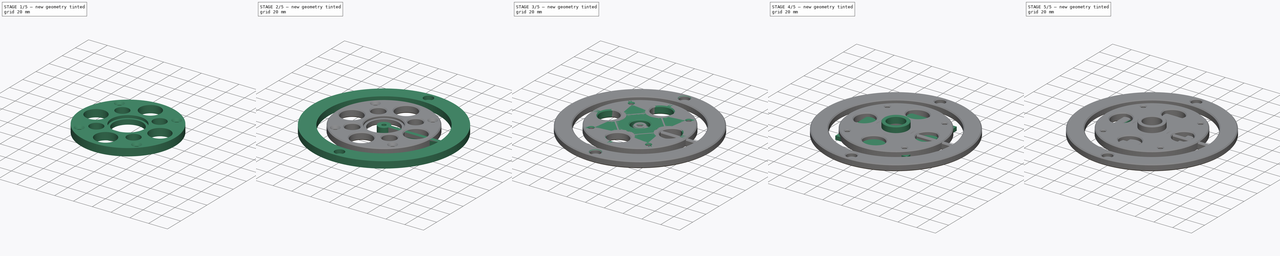
[diagram: build sequence overview — one tinted view per stage of 5, left to right]
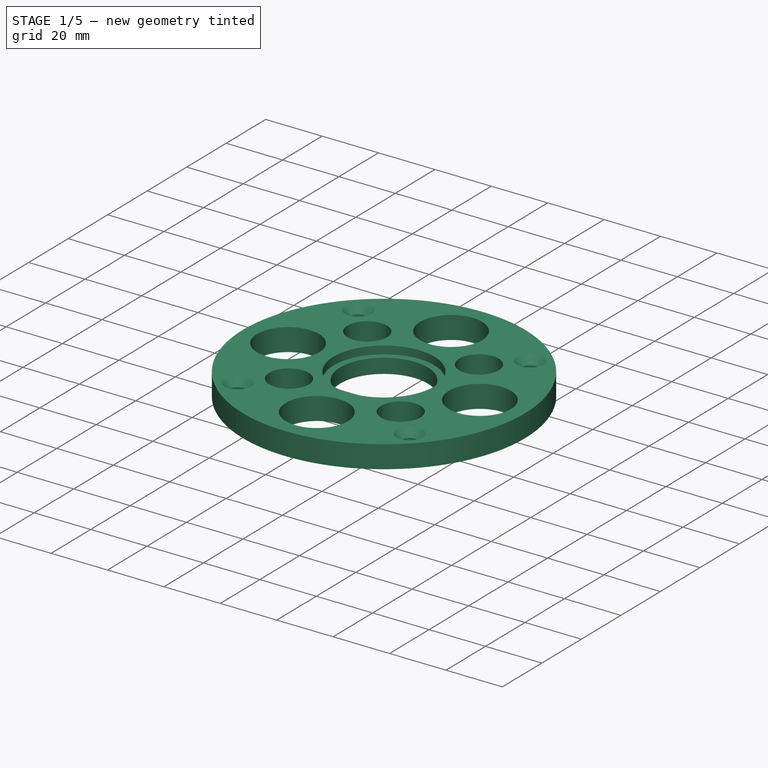
[diagram: stage 1 of 5 — iso view after this stage's code; geometry added in this stage tinted green]
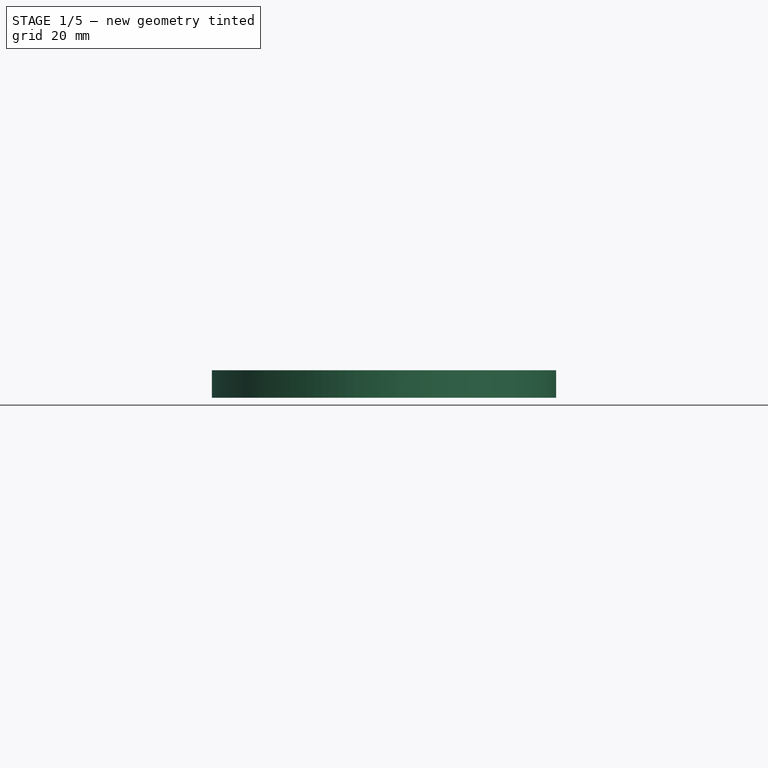
[diagram: stage 1 of 5 — front view after this stage's code; geometry added in this stage tinted green]
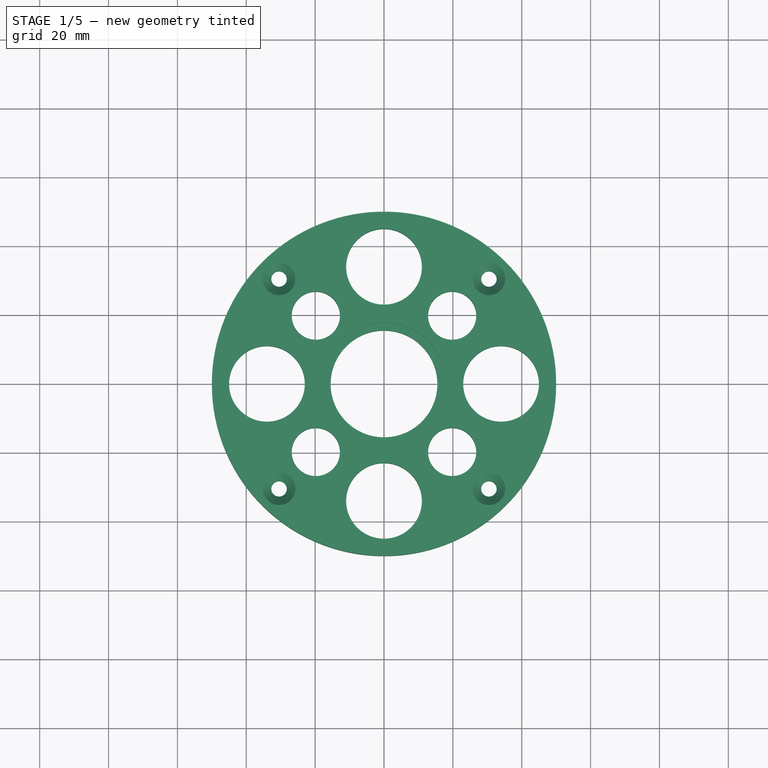
[diagram: stage 1 of 5 — top view after this stage's code; geometry added in this stage tinted green]
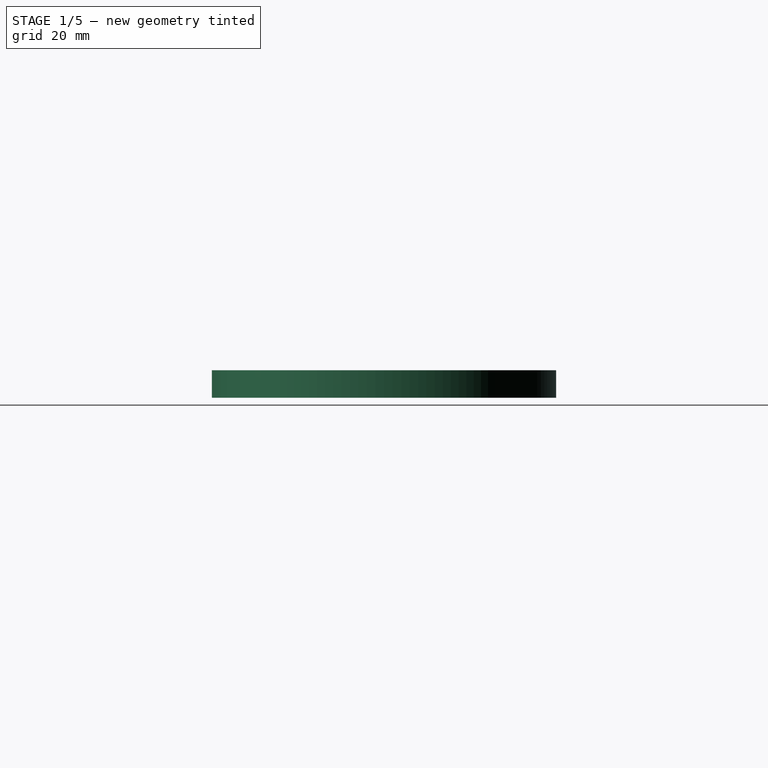
[diagram: stage 1 of 5 — right view after this stage's code; geometry added in this stage tinted green]
FCSTD DOCUMENT  (FreeCAD 2024.1R35694 (Git))
Label: dw611 base
License: All rights reserved
LicenseURL: http://en.wikipedia.org/wiki/All_rights_reserved
objects: Sketcher::SketchObject×14, PartDesign::Body×8, PartDesign::Chamfer×6, PartDesign::Pad×5, PartDesign::Pocket×3, Part::Feature×1, PartDesign::Fillet×1
note: 53 computed .brp shape members not serialized (recipe doc carries the construction recipe); baked Part::Feature solids carry a one-line shape summary decoded from their .brp

FEATURE [PartDesign::Body] Body002  label="template for recessing router base"
  Group = -> [Sketch004,Pad003,Sketch005,Pocket001,Chamfer003]
  Origin = -> Origin002
  Tip = -> Chamfer003
FEATURE [Sketcher::SketchObject] Sketch006
  FullyConstrained = true
  MapMode = 5
  Support = -> [XY_Plane003]
  sketch-geometry (18):
    g0: Circle CenterX=-30.4798 CenterY=30.4798 CenterZ=0 NormalX=0 NormalY=0 NormalZ=1 AngleXU=0 Radius=2.25
    g1: Circle CenterX=30.4798 CenterY=30.4798 CenterZ=0 NormalX=0 NormalY=0 NormalZ=1 AngleXU=0 Radius=2.25
    g2: Circle CenterX=30.4798 CenterY=-30.4798 CenterZ=0 NormalX=0 NormalY=0 NormalZ=1 AngleXU=0 Radius=2.25
    g3: Circle CenterX=-30.4798 CenterY=-30.4798 CenterZ=0 NormalX=0 NormalY=0 NormalZ=1 AngleXU=0 Radius=2.25
    g4: LineSegment StartX=-30.4798 StartY=30.4798 StartZ=0 EndX=-30.4798 EndY=-30.4798 EndZ=0
    g5: LineSegment StartX=-30.4798 StartY=30.4798 StartZ=0 EndX=30.4798 EndY=30.4798 EndZ=0
    g6: GeomPoint X=-1.1e-15 Y=1.1e-15 Z=0
    g7: Circle CenterX=-1.1e-15 CenterY=1.1e-15 CenterZ=0 NormalX=0 NormalY=0 NormalZ=1 AngleXU=0 Radius=15.5
    g8: Circle CenterX=-1.1e-15 CenterY=1.1e-15 CenterZ=0 NormalX=0 NormalY=0 NormalZ=1 AngleXU=0 Radius=50
    g9: Circle CenterX=34 CenterY=0 CenterZ=0 NormalX=0 NormalY=0 NormalZ=1 AngleXU=0 Radius=11
    g10: Circle CenterX=0 CenterY=-34 CenterZ=0 NormalX=0 NormalY=0 NormalZ=1 AngleXU=0 Radius=11
    g11: Circle CenterX=0 CenterY=34 CenterZ=0 NormalX=0 NormalY=0 NormalZ=1 AngleXU=0 Radius=11
    g12: Circle CenterX=-34 CenterY=0 CenterZ=0 NormalX=0 NormalY=0 NormalZ=1 AngleXU=0 Radius=11
    g13: Circle CenterX=-19.799 CenterY=19.799 CenterZ=0 NormalX=0 NormalY=0 NormalZ=1 AngleXU=0 Radius=7
    g14: LineSegment StartX=-30.4798 StartY=30.4798 StartZ=0 EndX=-1.1e-15 EndY=1.1e-15 EndZ=0
    g15: Circle CenterX=19.799 CenterY=-19.799 CenterZ=0 NormalX=0 NormalY=0 NormalZ=1 AngleXU=0 Radius=7
    g16: Circle CenterX=19.799 CenterY=19.799 CenterZ=0 NormalX=0 NormalY=0 NormalZ=1 AngleXU=0 Radius=7
    g17: Circle CenterX=-19.799 CenterY=-19.799 CenterZ=0 NormalX=0 NormalY=0 NormalZ=1 AngleXU=0 Radius=7
  constraints (39):
    c: Symmetric(g3,g1,g-1)
    c: Symmetric(g0,g1,g-2)
    c: Symmetric(g1,g2,g-1)
    c: Distance(g1,g3) = 86.21
    c: Coincident(g4,g0)
    c: Coincident(g4,g3)
    c: Coincident(g5,g0)
    c: Coincident(g5,g1)
    c: Equal(g5,g4)
    c: Equal(g0,g1)
    c: Equal(g0,g2)
    c: Equal(g0,g3)
    c: Diameter(g0) = 4.5
    c: Coincident(g7,g6)
    c: Diameter(g7) = 31
    c: Coincident(g7,g-1)
    c: Coincident(g8,g7)
    c: Diameter(g8) = 100
    c: PointOnObject(g9,g-1)
    c: PointOnObject(g10,g-2)
    c: Diameter(g11) = 22
    c: Equal(g11,g9)
    c: Equal(g9,g10)
    c: Equal(g12,g11)
    c: Symmetric(g12,g9,g7)
    c: Symmetric(g10,g11,g7)
    c: DistanceY(g7,g11) = 34
    c: DistanceX(g7,g9) = 34
    c: Coincident(g14,g0)
    c: Coincident(g14,g7)
    c: PointOnObject(g13,g14)
    c: Diameter(g13) = 14
    c: Equal(g17,g15)
    c: Equal(g15,g16)
    c: Equal(g16,g13)
    c: Symmetric(g13,g15,g7)
    c: Symmetric(g13,g17,g-1)
    c: Symmetric(g15,g16,g-1)
    c: Distance(g7,g13) = 28
FEATURE [PartDesign::Pad] Pad004
  Direction = (0,0,1)
  Length = 8
  Length2 = 10
  Profile = -> Sketch006
  ReferenceAxis = -> Sketch006 [N_Axis]
  Type = 0
FEATURE [Sketcher::SketchObject] Sketch007
  AttachmentOffset = pos=(0,0,8) rot=(0,0,1;0rad)
  FullyConstrained = true
  MapMode = 5
  Placement = pos=(0,0,8) rot=(0,0,1;0rad)
  Support = -> [XY_Plane003]
  sketch-geometry (1):
    g0: Circle CenterX=0 CenterY=0 CenterZ=0 NormalX=0 NormalY=0 NormalZ=1 AngleXU=0 Radius=17.85
  constraints (2):
    c: Coincident(g0,g-1)
    c: Diameter(g0) = 35.7
FEATURE [PartDesign::Pocket] Pocket002
  BaseFeature = -> Pad004
  Direction = (0,0,-1)
  Length = 2.8
  Length2 = 5
  Profile = -> Sketch007
  ReferenceAxis = -> Sketch007 [N_Axis]
  Type = 0
FEATURE [PartDesign::Chamfer] Chamfer004
  Angle = 45
  Base = -> Pocket002 [Edge29,Edge20,Edge17,Edge24]
  BaseFeature = -> Pocket002
  ChamferType = 0
  FlipDirection = false
  Size = 2.5
  Size2 = 1
  SupportTransform = false
  UseAllEdges = false
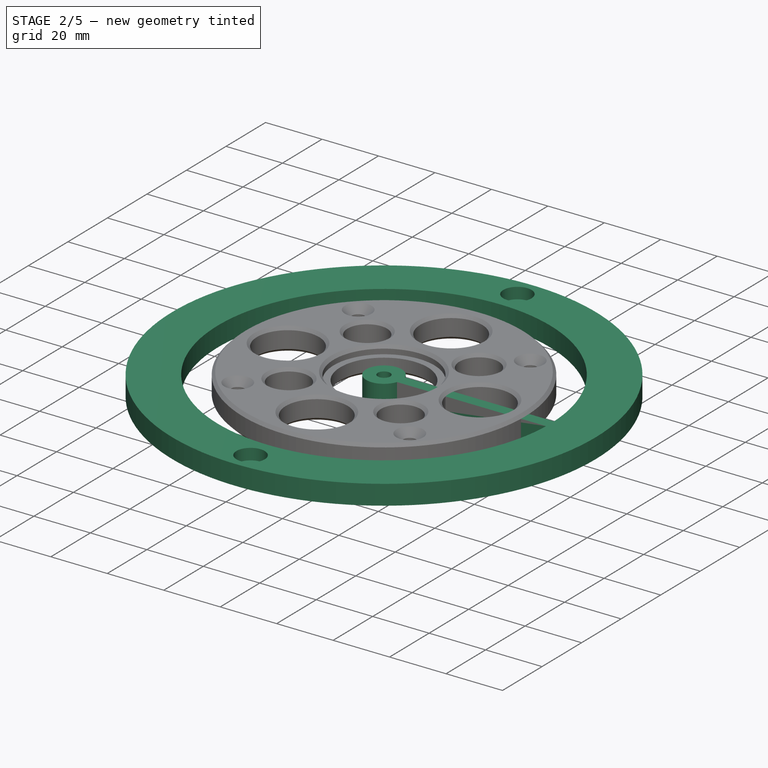
[diagram: stage 2 of 5 — iso view after this stage's code; geometry added in this stage tinted green]
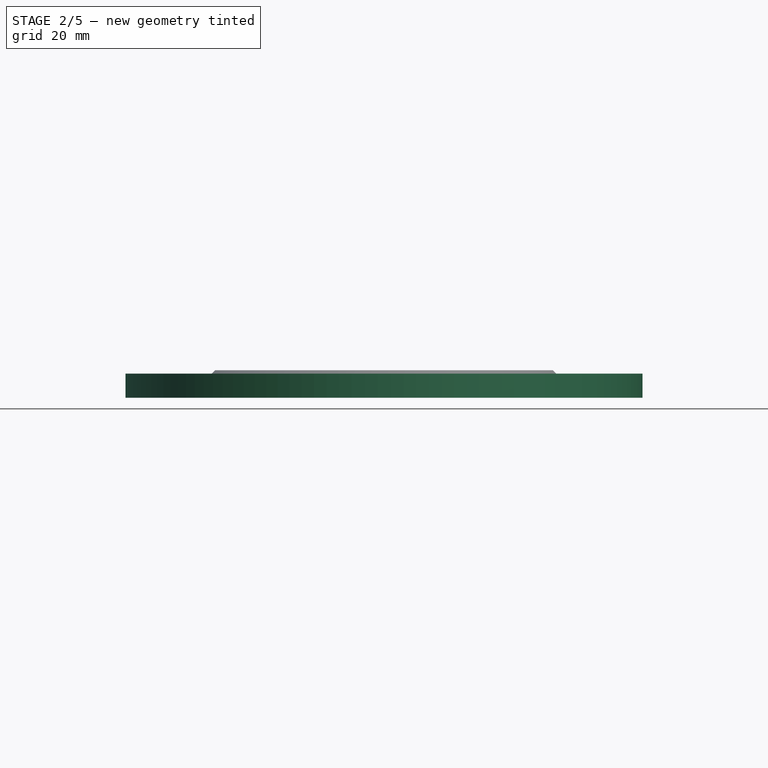
[diagram: stage 2 of 5 — front view after this stage's code; geometry added in this stage tinted green]
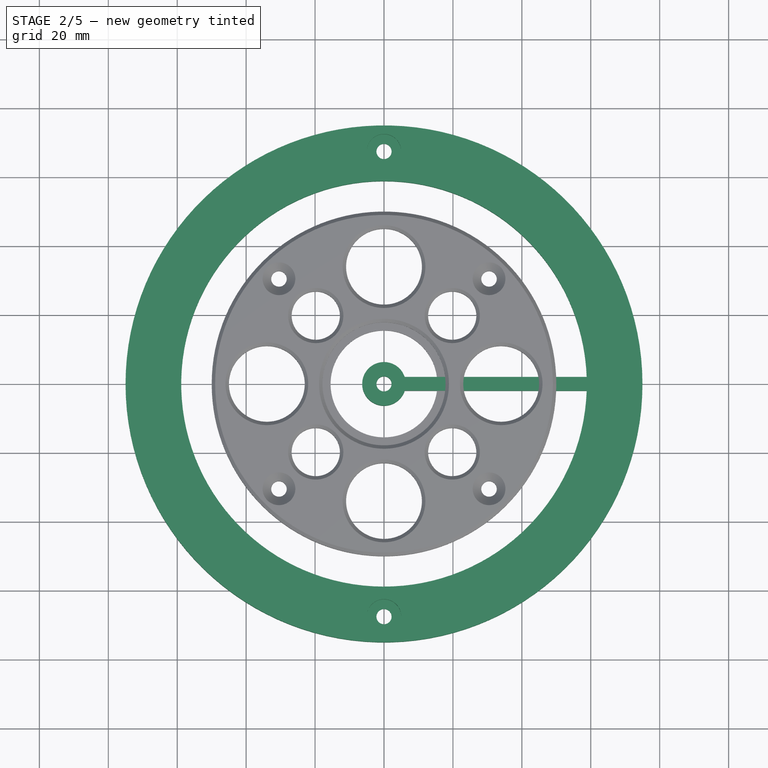
[diagram: stage 2 of 5 — top view after this stage's code; geometry added in this stage tinted green]
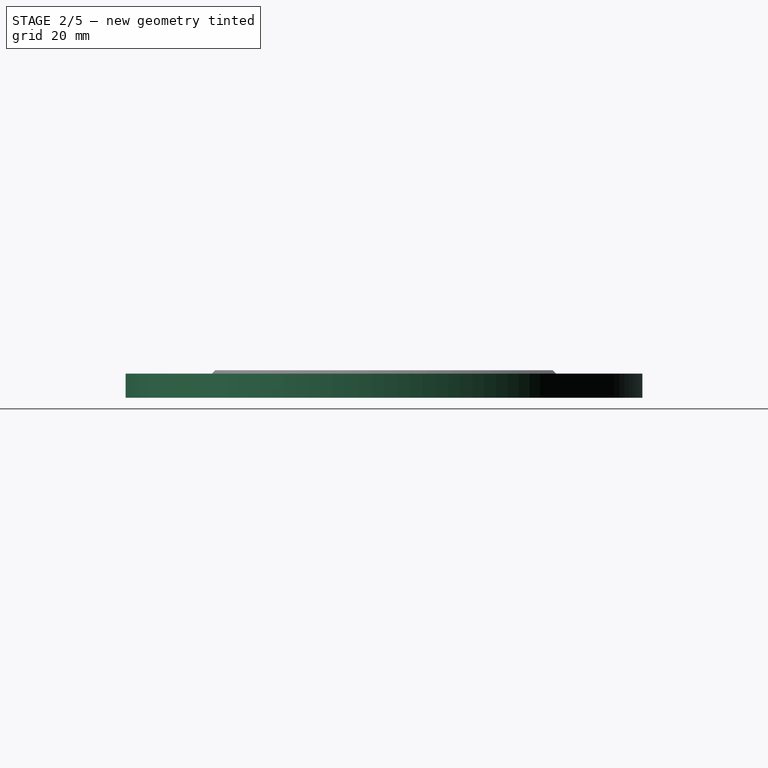
[diagram: stage 2 of 5 — right view after this stage's code; geometry added in this stage tinted green]
FEATURE [PartDesign::Body] Body001  label="1 inch bushing base"
  Group = -> [Sketch002,Pad001,Sketch003,Chamfer001,Pad002,Chamfer002]
  Origin = -> Origin001
  Tip = -> Chamfer002
FEATURE [Sketcher::SketchObject] Sketch004
  FullyConstrained = true
  MapMode = 5
  Support = -> [XY_Plane002]
  sketch-geometry (11):
    g0: Circle CenterX=0 CenterY=0 CenterZ=0 NormalX=0 NormalY=0 NormalZ=1 AngleXU=0 Radius=52.5
    g1: Circle CenterX=-46.15 CenterY=0 CenterZ=0 NormalX=0 NormalY=0 NormalZ=1 AngleXU=0 Radius=6.35
    g2: Circle CenterX=-46.15 CenterY=0 CenterZ=0 NormalX=0 NormalY=0 NormalZ=1 AngleXU=0 Radius=12.7
    g3: ArcOfCircle CenterX=0 CenterY=0 CenterZ=0 NormalX=0 NormalY=0 NormalZ=1 AngleXU=0 Radius=58.85 StartAngle=0.0339913 EndAngle=6.24919
    g4: Circle CenterX=0 CenterY=0 CenterZ=0 NormalX=0 NormalY=0 NormalZ=1 AngleXU=0 Radius=75
    g5: Circle CenterX=0 CenterY=0 CenterZ=0 NormalX=0 NormalY=0 NormalZ=1 AngleXU=0 Radius=2.2
    g6: LineSegment StartX=6 StartY=2 StartZ=0 EndX=58.816 EndY=2 EndZ=0
    g7: LineSegment StartX=58.816 StartY=-2 StartZ=0 EndX=6 EndY=-2 EndZ=0
    g8: ArcOfCircle CenterX=0 CenterY=0 CenterZ=0 NormalX=0 NormalY=0 NormalZ=1 AngleXU=0 Radius=6.32456 StartAngle=0.321751 EndAngle=5.96143
    g9: Circle CenterX=0 CenterY=67.5 CenterZ=0 NormalX=0 NormalY=0 NormalZ=1 AngleXU=0 Radius=2.2
    g10: Circle CenterX=0 CenterY=-67.5 CenterZ=0 NormalX=0 NormalY=0 NormalZ=1 AngleXU=0 Radius=2.2
  constraints (28):
    c: Coincident(g0,g-1)
    c: Diameter(g0) = 105
    c: PointOnObject(g1,g-1)
    c: Tangent(g1,g0)
    c: Diameter(g1) = 12.7
    c: Coincident(g2,g1)
    c: Diameter(g2) = 25.4
    c: Coincident(g3,g0)
    c: Tangent(g3,g2)
    c: Coincident(g4,g3)
    c: Diameter(g4) = 150
    c: Coincident(g5,g3)
    c: Diameter(g5) = 4.4
    c: Horizontal(g6)
    c: Horizontal(g7)
    c: Symmetric(g6,g7,g-1)
    c: DistanceY(g7,g6) = 4
    c: Coincident(g8,g3)
    c: Coincident(g8,g7)
    c: DistanceX(g3,g7) = 6
    c: PointOnObject(g8,g6)
    c: Coincident(g3,g7)
    c: Coincident(g3,g6)
    c: PointOnObject(g9,g-2)
    c: Equal(g9,g10)
    c: Diameter(g10) = 4.4
    c: Symmetric(g10,g9,g-1)
    c: DistanceY(g10,g9) = 135
FEATURE [PartDesign::Pad] Pad003
  Direction = (0,0,1)
  Length = 7
  Length2 = 10
  Profile = -> Sketch004
  ReferenceAxis = -> Sketch004 [N_Axis]
  Type = 0
FEATURE [Sketcher::SketchObject] Sketch005
  ExternalGeometry = -> [Pad003]
  FullyConstrained = true
  MapMode = 5
  Placement = pos=(0,0,7) rot=(0,0,1;0rad)
  Support = -> [Pad003]
  sketch-geometry (2):
    g0: Circle CenterX=0 CenterY=67.5 CenterZ=0 NormalX=0 NormalY=0 NormalZ=1 AngleXU=0 Radius=5
    g1: Circle CenterX=0 CenterY=-67.5 CenterZ=0 NormalX=0 NormalY=0 NormalZ=1 AngleXU=0 Radius=5
  constraints (4):
    c: Coincident(g0,g-3)
    c: Coincident(g1,g-4)
    c: Diameter(g1) = 10
    c: Equal(g1,g0)
FEATURE [PartDesign::Pocket] Pocket001
  BaseFeature = -> Pad003
  Direction = (0,0,-1)
  Length = 4
  Length2 = 5
  Profile = -> Sketch005
  ReferenceAxis = -> Sketch005 [N_Axis]
  Type = 0
FEATURE [PartDesign::Chamfer] Chamfer005
  Angle = 45
  Base = -> Chamfer004 [Edge2,Edge9,Edge10,Edge5,Edge4,Edge3,Edge6,Edge7,Edge8,Face17,Edge11]
  BaseFeature = -> Chamfer004
  ChamferType = 0
  FlipDirection = false
  Size = 1
  Size2 = 1
  SupportTransform = false
  UseAllEdges = false
FEATURE [PartDesign::Body] Body003  label="base for 30mm bushing"
  Group = -> [Sketch006,Pad004,Sketch007,Pocket002,Chamfer004,Chamfer005]
  Origin = -> Origin003
  Tip = -> Chamfer005
FEATURE [Sketcher::SketchObject] Sketch008
  FullyConstrained = true
  MapMode = 5
  Support = -> [XY_Plane004]
  sketch-geometry (30):
    g0: LineSegment StartX=-2.8e-15 StartY=43.1335 StartZ=0 EndX=-43.1335 EndY=-1e-15 EndZ=0
    g1: LineSegment StartX=-43.1335 StartY=-2.8e-15 StartZ=0 EndX=1e-15 EndY=-43.1335 EndZ=0
    g2: LineSegment StartX=2.8e-15 StartY=-43.1335 StartZ=0 EndX=43.1335 EndY=1e-15 EndZ=0
    g3: LineSegment StartX=43.1335 StartY=-3.2e-15 StartZ=0 EndX=-7e-16 EndY=43.1335 EndZ=0
    g4: Circle CenterX=0 CenterY=0 CenterZ=0 NormalX=0 NormalY=0 NormalZ=1 AngleXU=0 Radius=43.1335
    g5: Circle CenterX=43.1335 CenterY=-3.2e-15 CenterZ=0 NormalX=0 NormalY=0 NormalZ=1 AngleXU=0 Radius=2.25
    g6: Circle CenterX=-2.8e-15 CenterY=43.1335 CenterZ=0 NormalX=0 NormalY=0 NormalZ=1 AngleXU=0 Radius=2.25
    g7: Circle CenterX=-43.1335 CenterY=-2.8e-15 CenterZ=0 NormalX=0 NormalY=0 NormalZ=1 AngleXU=0 Radius=2.25
    g8: Circle CenterX=2.8e-15 CenterY=-43.1335 CenterZ=0 NormalX=0 NormalY=0 NormalZ=1 AngleXU=0 Radius=2.25
    g9: Circle CenterX=0 CenterY=0 CenterZ=0 NormalX=0 NormalY=0 NormalZ=1 AngleXU=0 Radius=11
    g10: ArcOfCircle CenterX=-35 CenterY=-61.1335 CenterZ=0 NormalX=0 NormalY=0 NormalZ=1 AngleXU=0 Radius=2.8 StartAngle=-9e-16 EndAngle=3.14159
    g11: ArcOfCircle CenterX=-35 CenterY=-91.1335 CenterZ=0 NormalX=0 NormalY=0 NormalZ=1 AngleXU=0 Radius=2.8 StartAngle=3.14159 EndAngle=6.28319
    g12: LineSegment StartX=-32.2 StartY=-61.1335 StartZ=0 EndX=-32.2 EndY=-91.1335 EndZ=0
    g13: LineSegment StartX=-37.8 StartY=-61.1335 StartZ=0 EndX=-37.8 EndY=-91.1335 EndZ=0
    g14: ArcOfCircle CenterX=35 CenterY=-61.1335 CenterZ=0 NormalX=0 NormalY=0 NormalZ=1 AngleXU=0 Radius=2.8 StartAngle=-9e-16 EndAngle=3.14159
    g15: ArcOfCircle CenterX=35 CenterY=-91.1335 CenterZ=0 NormalX=0 NormalY=0 NormalZ=1 AngleXU=0 Radius=2.8 StartAngle=3.14159 EndAngle=6.28319
    g16: LineSegment StartX=37.8 StartY=-61.1335 StartZ=0 EndX=37.8 EndY=-91.1335 EndZ=0
    g17: LineSegment StartX=32.2 StartY=-61.1335 StartZ=0 EndX=32.2 EndY=-91.1335 EndZ=0
    g18: ArcOfCircle CenterX=0 CenterY=0 CenterZ=0 NormalX=0 NormalY=0 NormalZ=1 AngleXU=0 Radius=50 StartAngle=0 EndAngle=3.14159
    g19: LineSegment StartX=-50 StartY=6.1e-15 StartZ=0 EndX=-50 EndY=-84 EndZ=0
    g20: LineSegment StartX=-46.2529 StartY=-92.7114 StartZ=0 EndX=-8.25294 EndY=-128.711 EndZ=0
    g21: LineSegment StartX=8.25294 StartY=-128.711 StartZ=0 EndX=46.2529 EndY=-92.7114 EndZ=0
    g22: LineSegment StartX=50 StartY=-84 StartZ=0 EndX=50 EndY=0 EndZ=0
    g23: ArcOfCircle CenterX=4e-15 CenterY=-120 CenterZ=0 NormalX=0 NormalY=0 NormalZ=1 AngleXU=0 Radius=12 StartAngle=3.95401 EndAngle=5.47077
    g24: GeomPoint X=0 Y=-136.53 Z=0
    g25: ArcOfCircle CenterX=38 CenterY=-84 CenterZ=0 NormalX=0 NormalY=0 NormalZ=1 AngleXU=0 Radius=12 StartAngle=5.47077 EndAngle=6.28319
    g26: GeomPoint X=50 Y=-89.1616 Z=0
    g27: ArcOfCircle CenterX=-38 CenterY=-84 CenterZ=0 NormalX=0 NormalY=0 NormalZ=1 AngleXU=0 Radius=12 StartAngle=3.14159 EndAngle=3.95401
    g28: GeomPoint X=-50 Y=-89.1616 Z=0
    g29: Circle CenterX=4e-15 CenterY=-120 CenterZ=0 NormalX=0 NormalY=0 NormalZ=1 AngleXU=0 Radius=2.8
  constraints (71):
    c: Coincident(g0,g1)
    c: Coincident(g1,g2)
    c: Coincident(g2,g3)
    c: Coincident(g3,g0)
    c: Equal(g0,g1)
    c: Equal(g0,g2)
    c: Equal(g0,g3)
    c: PointOnObject(g0,g4)
    c: PointOnObject(g1,g4)
    c: PointOnObject(g2,g4)
    c: PointOnObject(g3,g4)
    c: Coincident(g4,g-1)
    c: PointOnObject(g3,g-2)
    c: Coincident(g5,g2)
    c: Coincident(g6,g0)
    c: Coincident(g7,g0)
    c: Coincident(g8,g1)
    c: Equal(g6,g5)
    c: Equal(g6,g8)
    c: Equal(g6,g7)
    c: Diameter(g6) = 4.5
    c: Coincident(g9,g4)
    c: Diameter(g9) = 22
    c: Tangent(g10,g12) = 1.5708
    c: Tangent(g10,g13) = -1.5708
    c: Tangent(g11,g12) = 1.5708
    c: Tangent(g11,g13) = -1.5708
    c: Equal(g10,g11)
    c: Vertical(g12)
    c: Tangent(g14,g16) = 1.5708
    c: Tangent(g14,g17) = -1.5708
    c: Tangent(g15,g16) = 1.5708
    c: Tangent(g15,g17) = -1.5708
    c: Equal(g14,g15)
    c: Vertical(g16)
    c: Horizontal(g14,g10)
    c: Equal(g15,g11)
    c: Diameter(g15) = 5.6
    c: Symmetric(g11,g15,g-2)
    c: Coincident(g18,g9)
    c: PointOnObject(g18,g-1)
    c: PointOnObject(g18,g-1)
    c: Diameter(g18) = 100
    c: Distance(g3) = 61
    c: DistanceY(g14,g8) = 18
    c: DistanceX(g8,g14) = 35
    c: DistanceY(g16,g16) = 30
    c: Tangent(g18,g19) = -1.5708
    c: PointOnObject(g24,g-2)
    c: Coincident(g22,g18)
    c: Vertical(g22)
    c: PointOnObject(g24,g20)
    c: PointOnObject(g24,g21)
    c: Tangent(g20,g23) = -1.5708
    c: Tangent(g21,g23) = -1.5708
    c: Radius(g23) = 12
    c: PointOnObject(g26,g22)
    c: PointOnObject(g26,g21)
    c: Tangent(g22,g25) = -1.5708
    c: Tangent(g21,g25) = -1.5708
    c: PointOnObject(g28,g20)
    c: PointOnObject(g28,g19)
    c: Tangent(g20,g27) = -1.5708
    c: Tangent(g19,g27) = -1.5708
    c: Equal(g27,g23)
    c: Equal(g23,g25)
    c: Equal(g22,g19)
    c: DistanceY(g23,g9) = 120
    c: Coincident(g29,g23)
    c: Diameter(g29) = 5.6
    c: DistanceY(g22,g22) = 84
FEATURE [PartDesign::Body] Body004  label="Body"
  Group = -> [Sketch008]
  Origin = -> Origin004
FEATURE [Sketcher::SketchObject] Sketch009
  FullyConstrained = true
  MapMode = 5
  Support = -> [XY_Plane005]
  sketch-geometry (16):
    g0: Circle CenterX=0 CenterY=0 CenterZ=0 NormalX=0 NormalY=0 NormalZ=1 AngleXU=0 Radius=11
    g1: ArcOfCircle CenterX=0 CenterY=0 CenterZ=0 NormalX=0 NormalY=0 NormalZ=1 AngleXU=0 Radius=50 StartAngle=0.726722 EndAngle=4.72872
    g2: LineSegment StartX=-30.5 StartY=30.5 StartZ=0 EndX=-30.5 EndY=-30.5 EndZ=0
    g3: LineSegment StartX=-30.5 StartY=-30.5 StartZ=0 EndX=30.5 EndY=-30.5 EndZ=0
    g4: LineSegment StartX=30.5 StartY=-30.5 StartZ=0 EndX=30.5 EndY=30.5 EndZ=0
    g5: LineSegment StartX=30.5 StartY=30.5 StartZ=0 EndX=-30.5 EndY=30.5 EndZ=0
    g6: Circle CenterX=-30.5 CenterY=30.5 CenterZ=0 NormalX=0 NormalY=0 NormalZ=1 AngleXU=0 Radius=2.25
    g7: Circle CenterX=30.5 CenterY=30.5 CenterZ=0 NormalX=0 NormalY=0 NormalZ=1 AngleXU=0 Radius=2.25
    g8: Circle CenterX=30.5 CenterY=-30.5 CenterZ=0 NormalX=0 NormalY=0 NormalZ=1 AngleXU=0 Radius=2.25
    g9: Circle CenterX=-30.5 CenterY=-30.5 CenterZ=0 NormalX=0 NormalY=0 NormalZ=1 AngleXU=0 Radius=2.25
    g10: Circle CenterX=61.4692 CenterY=-27 CenterZ=0 NormalX=0 NormalY=0 NormalZ=1 AngleXU=0 Radius=3.2
    g11: GeomPoint X=-40 Y=0 Z=0
    g12: ArcOfCircle CenterX=61.4692 CenterY=-27 CenterZ=0 NormalX=0 NormalY=0 NormalZ=1 AngleXU=0 Radius=22 StartAngle=4.72872 EndAngle=7.00991
    g13: LineSegment StartX=0.816343 StartY=-49.9933 StartZ=0 EndX=61.8284 EndY=-48.9971 EndZ=0
    g14: LineSegment StartX=77.9111 StartY=-12.3827 StartZ=0 EndX=37.3678 EndY=33.2212 EndZ=0
    g15: Circle CenterX=-40 CenterY=0 CenterZ=0 NormalX=0 NormalY=0 NormalZ=1 AngleXU=0 Radius=3.2
  constraints (36):
    c: Diameter(g0) = 22
    c: Coincident(g1,g0)
    c: Diameter(g1) = 100
    c: Coincident(g2,g3)
    c: Coincident(g3,g4)
    c: Coincident(g4,g5)
    c: Coincident(g5,g2)
    c: Vertical(g2)
    c: Vertical(g4)
    c: Horizontal(g3)
    c: Horizontal(g5)
    c: Symmetric(g4,g2,g0)
    c: Equal(g5,g4)
    c: DistanceX(g5,g5) = 61
    c: Coincident(g6,g2)
    c: Coincident(g7,g4)
    c: Coincident(g8,g3)
    c: Coincident(g9,g2)
    c: Equal(g6,g9)
    c: Equal(g6,g8)
    c: Equal(g6,g7)
    c: Diameter(g6) = 4.5
    c: Coincident(g0,g-1)
    c: PointOnObject(g11,g-1)
    c: DistanceX(g11,g0) = 40
    c: Distance(g11,g10) = 105
    c: Diameter(g10) = 6.4
    c: DistanceY(g10,g0) = 27
    c: Coincident(g12,g10)
    c: Tangent(g1,g13) = -1.5708
    c: Tangent(g12,g13) = -1.5708
    c: Tangent(g12,g14) = -1.5708
    c: Tangent(g1,g14) = -1.5708
    c: Radius(g12) = 22
    c: Coincident(g15,g11)
    c: Diameter(g15) = 6.4
FEATURE [Sketcher::SketchObject] Sketch011
  FullyConstrained = false
  MapMode = 5
  Support = -> [XY_Plane005]
  sketch-geometry (21):
    g0: Circle CenterX=-40 CenterY=0 CenterZ=0 NormalX=0 NormalY=0 NormalZ=1 AngleXU=0 Radius=2.8
    g1: LineSegment StartX=-40.6 StartY=7.97747 StartZ=0 EndX=-15.9916 EndY=9.82831 EndZ=0
    g2: ArcOfCircle CenterX=-40 CenterY=0 CenterZ=0 NormalX=0 NormalY=0 NormalZ=1 AngleXU=0 Radius=8 StartAngle=1.64587 EndAngle=4.50076
    g3: ArcOfCircle CenterX=-40 CenterY=0 CenterZ=0 NormalX=0 NormalY=0 NormalZ=1 AngleXU=0 Radius=29 StartAngle=0 EndAngle=0.235761
    g4: ArcOfCircle CenterX=-40 CenterY=0 CenterZ=0 NormalX=0 NormalY=0 NormalZ=1 AngleXU=0 Radius=51 StartAngle=0 EndAngle=0.147862
    g5: ArcOfCircle CenterX=-15.6916 CenterY=5.83958 CenterZ=0 NormalX=0 NormalY=0 NormalZ=1 AngleXU=0 Radius=4 StartAngle=0.235761 EndAngle=1.64587
    g6: ArcOfCircle CenterX=14.3999 CenterY=8.10281 CenterZ=0 NormalX=0 NormalY=0 NormalZ=1 AngleXU=0 Radius=4 StartAngle=1.64587 EndAngle=3.28945
    g7: LineSegment StartX=-15.9916 StartY=9.82831 StartZ=0 EndX=14.0999 EndY=12.0915 EndZ=0
    g8: ArcOfCircle CenterX=1.01241e-08 CenterY=6.15154e-08 CenterZ=0 NormalX=0 NormalY=0 NormalZ=1 AngleXU=0 Radius=11 StartAngle=3.14159 EndAngle=6.28319
    g9: LineSegment StartX=-40 StartY=0 StartZ=0 EndX=64.7043 EndY=7.875 EndZ=0
    g10: LineSegment StartX=-40 StartY=0 StartZ=0 EndX=62.6576 EndY=-22.0551 EndZ=0
    g11: ArcOfCircle CenterX=-40 CenterY=0 CenterZ=0 NormalX=0 NormalY=0 NormalZ=1 AngleXU=0 Radius=105 StartAngle=6.07156 EndAngle=6.35826
    g12: ArcOfCircle CenterX=-40 CenterY=0 CenterZ=0 NormalX=0 NormalY=0 NormalZ=1 AngleXU=0 Radius=99.4 StartAngle=6.07156 EndAngle=6.35826
    g13: ArcOfCircle CenterX=61.9122 CenterY=7.665 CenterZ=0 NormalX=0 NormalY=0 NormalZ=1 AngleXU=0 Radius=2.8 StartAngle=0.0750705 EndAngle=3.21666
    g14: ArcOfCircle CenterX=59.92 CenterY=-21.467 CenterZ=0 NormalX=0 NormalY=0 NormalZ=1 AngleXU=0 Radius=2.8 StartAngle=2.92997 EndAngle=6.07156
    g15: LineSegment StartX=64.1043 StartY=15.8525 StartZ=0 EndX=14.0999 EndY=12.0915 EndZ=0
    g16: LineSegment StartX=-41.6804 StartY=-7.82153 StartZ=0 EndX=60.9772 EndY=-29.8766 EndZ=0
    g17: ArcOfCircle CenterX=-40 CenterY=0 CenterZ=0 NormalX=0 NormalY=0 NormalZ=1 AngleXU=0 Radius=111.019 StartAngle=6.05252 EndAngle=6.3773
    g18: ArcOfCircle CenterX=64.5543 CenterY=9.86937 CenterZ=0 NormalX=0 NormalY=0 NormalZ=1 AngleXU=0 Radius=6 StartAngle=0.0941158 EndAngle=1.64587
    g19: ArcOfCircle CenterX=62.2375 CenterY=-24.0105 CenterZ=0 NormalX=0 NormalY=0 NormalZ=1 AngleXU=0 Radius=6 StartAngle=4.50076 EndAngle=6.05252
    g20: ArcOfCircle CenterX=1.01241e-08 CenterY=6.15154e-08 CenterZ=0 NormalX=0 NormalY=0 NormalZ=1 AngleXU=0 Radius=11 StartAngle=6.28319 EndAngle=9.42478
  constraints (50):
    c: PointOnObject(g0,g-1)
    c: Diameter(g0) = 5.6
    c: Coincident(g2,g0)
    c: Radius(g2) = 8
    c: DistanceX(g0,g-1) = 40
    c: Coincident(g3,g0)
    c: PointOnObject(g3,g-1)
    c: Coincident(g4,g0)
    c: PointOnObject(g4,g-1)
    c: Tangent(g3,g5) = -1.5708
    c: Tangent(g1,g5) = 1.5708
    c: Tangent(g4,g6) = 1.5708
    c: Coincident(g7,g6) = 1.5708
    c: Equal(g6,g5)
    c: Radius(g5) = 4
    c: Coincident(g7,g1)
    c: Tangent(g7,g6)
    c: Coincident(g8,g3)
    c: Coincident(g8,g4)
    c: Coincident(g10,g0)
    c: Coincident(g9,g0)
    c: Coincident(g11,g0)
    c: Coincident(g11,g9)
    c: Coincident(g11,g10)
    c: Distance(g11,g12) = 5.6
    c: Coincident(g12,g0)
    c: Tangent(g13,g12) = 1.5708
    c: Tangent(g13,g11) = -1.5708
    c: Tangent(g14,g12) = 1.5708
    c: Tangent(g14,g11) = -1.5708
    c: Distance(g9) = 105
    c: Tangent(g15,g6) = -1.5708
    c: Parallel(g7,g1)
    c: Parallel(g9,g15)
    c: Tangent(g16,g2) = -1.5708
    c: Parallel(g10,g16)
    c: Tangent(g2,g1) = 1.5708
    c: Coincident(g17,g0)
    c: Tangent(g15,g18) = -1.5708
    c: Tangent(g17,g18) = -1.5708
    c: Tangent(g17,g19) = -1.5708
    c: Tangent(g16,g19) = -1.5708
    c: Equal(g19,g18)
    c: Radius(g18) = 6
    c: Distance(g16) = 105
    c: Diameter(g8) = 22
    c: Coincident(g20,g8)
    c: Coincident(g20,g3)
    c: Coincident(g20,g4)
    c: Tangent(g20,g7)
FEATURE [Sketcher::SketchObject] Sketch012
  FullyConstrained = true
  MapMode = 5
  Support = -> [XY_Plane005]
  sketch-geometry (20):
    g0: Circle CenterX=-40 CenterY=0 CenterZ=0 NormalX=0 NormalY=0 NormalZ=1 AngleXU=0 Radius=2.8
    g1: Circle CenterX=0 CenterY=0 CenterZ=0 NormalX=0 NormalY=0 NormalZ=1 AngleXU=0 Radius=11
    g2: ArcOfCircle CenterX=-40 CenterY=0 CenterZ=0 NormalX=0 NormalY=0 NormalZ=1 AngleXU=0 Radius=105 StartAngle=6.0046 EndAngle=6.35826
    g3: ArcOfCircle CenterX=-40 CenterY=0 CenterZ=0 NormalX=0 NormalY=0 NormalZ=1 AngleXU=0 Radius=113.8 StartAngle=5.98604 EndAngle=6.37681
    g4: ArcOfCircle CenterX=-40 CenterY=0 CenterZ=0 NormalX=0 NormalY=0 NormalZ=1 AngleXU=0 Radius=8 StartAngle=1.64587 EndAngle=4.4338
    g5: ArcOfCircle CenterX=0 CenterY=0 CenterZ=0 NormalX=0 NormalY=0 NormalZ=1 AngleXU=0 Radius=11 StartAngle=3.14159 EndAngle=6.28319
    g6: LineSegment StartX=-40.6 StartY=7.97747 StartZ=0 EndX=66.8779 EndY=16.0611 EndZ=0
    g7: LineSegment StartX=-40 StartY=0 StartZ=0 EndX=73.4795 EndY=8.535 EndZ=0
    g8: LineSegment StartX=-40 StartY=0 StartZ=0 EndX=69.4124 EndY=-31.295 EndZ=0
    g9: LineSegment StartX=11 StartY=-2.7e-15 StartZ=0 EndX=10.1131 EndY=11.7917 EndZ=0
    g10: LineSegment StartX=-11 StartY=1.3e-15 StartZ=0 EndX=-11.7631 EndY=10.1463 EndZ=0
    g11: LineSegment StartX=-40.6 StartY=7.97747 StartZ=0 EndX=-11.7631 EndY=10.1463 EndZ=0
    g12: LineSegment StartX=10.1131 StartY=11.7917 StartZ=0 EndX=66.8779 EndY=16.0611 EndZ=0
    g13: LineSegment StartX=-42.2 StartY=-7.69155 StartZ=0 EndX=61.4258 EndY=-37.3315 EndZ=0
    g14: ArcOfCircle CenterX=-40 CenterY=0 CenterZ=0 NormalX=0 NormalY=0 NormalZ=1 AngleXU=0 Radius=102.2 StartAngle=6.0046 EndAngle=6.35826
    g15: ArcOfCircle CenterX=-40 CenterY=0 CenterZ=0 NormalX=0 NormalY=0 NormalZ=1 AngleXU=0 Radius=107.8 StartAngle=6.0046 EndAngle=6.35826
    g16: ArcOfCircle CenterX=64.7043 CenterY=7.875 CenterZ=0 NormalX=0 NormalY=0 NormalZ=1 AngleXU=0 Radius=2.8 StartAngle=0.0750705 EndAngle=3.21666
    g17: ArcOfCircle CenterX=60.9516 CenterY=-28.875 CenterZ=0 NormalX=0 NormalY=0 NormalZ=1 AngleXU=0 Radius=2.8 StartAngle=2.863 EndAngle=6.0046
    g18: ArcOfCircle CenterX=67.3279 CenterY=10.078 CenterZ=0 NormalX=0 NormalY=0 NormalZ=1 AngleXU=0 Radius=6 StartAngle=0.0936244 EndAngle=1.64587
    g19: ArcOfCircle CenterX=63.0758 CenterY=-31.5628 CenterZ=0 NormalX=0 NormalY=0 NormalZ=1 AngleXU=0 Radius=6 StartAngle=4.4338 EndAngle=5.98604
  constraints (56):
    c: PointOnObject(g0,g-1)
    c: Diameter(g0) = 5.6
    c: DistanceX(g0,g-1) = 40
    c: Coincident(g1,g-1)
    c: Diameter(g1) = 22
    c: Coincident(g2,g0)
    c: Coincident(g3,g0)
    c: Coincident(g4,g0)
    c: Coincident(g5,g1)
    c: PointOnObject(g5,g-1)
    c: PointOnObject(g5,g-1)
    c: PointOnObject(g5,g1)
    c: Tangent(g6,g1)
    c: Tangent(g6,g4) = 1.5708
    c: Radius(g2) = 105
    c: Coincident(g7,g0)
    c: PointOnObject(g2,g7)
    c: Coincident(g8,g0)
    c: PointOnObject(g2,g8)
    c: Parallel(g7,g6)
    c: Coincident(g9,g5)
    c: PointOnObject(g9,g6)
    c: Radius(g4) = 8
    c: Perpendicular(g6,g9)
    c: Coincident(g10,g5)
    c: PointOnObject(g10,g6)
    c: Perpendicular(g10,g6)
    c: Coincident(g11,g4)
    c: Coincident(g11,g10)
    c: Coincident(g12,g9)
    c: Tangent(g13,g4) = -1.5708
    c: Equal(g6,g13)
    c: Parallel(g8,g13)
    c: Coincident(g14,g0)
    c: Coincident(g15,g0)
    c: PointOnObject(g15,g7)
    c: PointOnObject(g14,g7)
    c: PointOnObject(g14,g8)
    c: Symmetric(g15,g14,g2)
    c: Distance(g15,g14) = 5.6
    c: Coincident(g17,g2)
    c: Coincident(g17,g15)
    c: Tangent(g16,g15) = -1.5708
    c: Coincident(g16,g14)
    c: PointOnObject(g17,g14)
    c: Tangent(g8,g5)
    c: PointOnObject(g7,g3)
    c: PointOnObject(g8,g3)
    c: Distance(g8,g15) = 6
    c: Tangent(g12,g18) = 1.5708
    c: Tangent(g3,g18) = -1.5708
    c: Tangent(g3,g19) = -1.5708
    c: Tangent(g13,g19) = -1.5708
    c: Equal(g19,g18)
    c: PointOnObject(g12,g6)
    c: Radius(g18) = 6
FEATURE [PartDesign::Body] Body005
  Group = -> [Sketch009,Sketch011,Sketch012]
  Origin = -> Origin005
FEATURE [Sketcher::SketchObject] Sketch013
  FullyConstrained = true
  MapMode = 5
  Support = -> [XY_Plane006]
  sketch-geometry (27):
    g0: LineSegment StartX=-30.5 StartY=-30.5 StartZ=0 EndX=-30.5 EndY=30.5 EndZ=0
    g1: LineSegment StartX=-30.5 StartY=30.5 StartZ=0 EndX=30.5 EndY=30.5 EndZ=0
    g2: LineSegment StartX=30.5 StartY=30.5 StartZ=0 EndX=30.5 EndY=-30.5 EndZ=0
    g3: LineSegment StartX=30.5 StartY=-30.5 StartZ=0 EndX=-30.5 EndY=-30.5 EndZ=0
    g4: GeomPoint X=0 Y=0 Z=0
    g5: Circle CenterX=-30.5 CenterY=30.5 CenterZ=0 NormalX=0 NormalY=0 NormalZ=1 AngleXU=0 Radius=2.25
    g6: Circle CenterX=30.5 CenterY=30.5 CenterZ=0 NormalX=0 NormalY=0 NormalZ=1 AngleXU=0 Radius=2.25
    g7: Circle CenterX=30.5 CenterY=-30.5 CenterZ=0 NormalX=0 NormalY=0 NormalZ=1 AngleXU=0 Radius=2.25
    g8: Circle CenterX=-30.5 CenterY=-30.5 CenterZ=0 NormalX=0 NormalY=0 NormalZ=1 AngleXU=0 Radius=2.25
    g9: Circle CenterX=0 CenterY=0 CenterZ=0 NormalX=0 NormalY=0 NormalZ=1 AngleXU=0 Radius=12
    g10: LineSegment StartX=0 StartY=0 StartZ=0 EndX=30.5 EndY=30.5 EndZ=0
    g11: ArcOfCircle CenterX=17.5 CenterY=-65 CenterZ=0 NormalX=0 NormalY=0 NormalZ=1 AngleXU=0 Radius=2.25 StartAngle=-9e-16 EndAngle=3.14159
    g12: ArcOfCircle CenterX=17.5 CenterY=-115 CenterZ=0 NormalX=0 NormalY=0 NormalZ=1 AngleXU=0 Radius=2.25 StartAngle=3.14159 EndAngle=6.28319
    g13: LineSegment StartX=19.75 StartY=-65 StartZ=0 EndX=19.75 EndY=-115 EndZ=0
    g14: LineSegment StartX=15.25 StartY=-65 StartZ=0 EndX=15.25 EndY=-115 EndZ=0
    g15: ArcOfCircle CenterX=-17.5 CenterY=-65 CenterZ=0 NormalX=0 NormalY=0 NormalZ=1 AngleXU=0 Radius=2.25 StartAngle=-2.7e-15 EndAngle=3.14159
    g16: ArcOfCircle CenterX=-17.5 CenterY=-115 CenterZ=0 NormalX=0 NormalY=0 NormalZ=1 AngleXU=0 Radius=2.25 StartAngle=3.14159 EndAngle=6.28319
    g17: LineSegment StartX=-15.25 StartY=-65 StartZ=0 EndX=-15.25 EndY=-115 EndZ=0
    g18: LineSegment StartX=-19.75 StartY=-65 StartZ=0 EndX=-19.75 EndY=-115 EndZ=0
    g19: LineSegment StartX=-17.5 StartY=-115 StartZ=0 EndX=17.5 EndY=-115 EndZ=0
    g20: LineSegment StartX=0 StartY=-105 StartZ=0 EndX=0 EndY=-115 EndZ=0
    g21: ArcOfCircle CenterX=0 CenterY=0 CenterZ=0 NormalX=0 NormalY=0 NormalZ=1 AngleXU=0 Radius=50 StartAngle=6.13054 EndAngle=9.57743
    g22: LineSegment StartX=-29.6512 StartY=-136.091 StartZ=0 EndX=-49.4186 EndY=-7.60286 EndZ=0
    g23: LineSegment StartX=49.4186 StartY=-7.60286 StartZ=0 EndX=29.6512 EndY=-136.091 EndZ=0
    g24: ArcOfCircle CenterX=1.6e-15 CenterY=-131.529 CenterZ=0 NormalX=0 NormalY=0 NormalZ=1 AngleXU=0 Radius=30 StartAngle=3.29424 EndAngle=6.13054
    g25: ArcOfCircle CenterX=-4e-16 CenterY=-2e-16 CenterZ=0 NormalX=0 NormalY=0 NormalZ=1 AngleXU=0 Radius=50 StartAngle=3.29424 EndAngle=6.13054
    g26: Circle CenterX=-9e-16 CenterY=-136.091 CenterZ=0 NormalX=0 NormalY=0 NormalZ=1 AngleXU=0 Radius=2.7
  constraints (62):
    c: Coincident(g0,g1)
    c: Coincident(g1,g2)
    c: Coincident(g2,g3)
    c: Coincident(g3,g0)
    c: Perpendicular(g1,g0)
    c: Equal(g0,g1)
    c: Equal(g1,g2)
    c: Equal(g2,g3)
    c: Distance(g0) = 61
    c: Symmetric(g2,g0,g4)
    c: Coincident(g5,g0)
    c: Coincident(g6,g1)
    c: Coincident(g7,g2)
    c: Coincident(g8,g0)
    c: Equal(g5,g6)
    c: Equal(g5,g7)
    c: Equal(g5,g8)
    c: Diameter(g5) = 4.5
    c: Coincident(g9,g4)
    c: Diameter(g9) = 24
    c: Coincident(g9,g-1)
    c: Coincident(g10,g9)
    c: Coincident(g10,g6)
    c: Angle(g-1,g10) = 0.785398
    c: Tangent(g11,g13) = 1.5708
    c: Tangent(g11,g14) = -1.5708
    c: Tangent(g12,g13) = 1.5708
    c: Tangent(g12,g14) = -1.5708
    c: Equal(g11,g12)
    c: Tangent(g15,g17) = 1.5708
    c: Tangent(g15,g18) = -1.5708
    c: Tangent(g16,g17) = 1.5708
    c: Tangent(g16,g18) = -1.5708
    c: Equal(g15,g16)
    c: Diameter(g12) = 4.5
    c: Equal(g12,g16)
    c: Equal(g14,g17)
    c: Parallel(g17,g14)
    c: Coincident(g19,g16)
    c: Coincident(g19,g12)
    c: Perpendicular(g17,g19)
    c: Distance(g13) = 50
    c: DistanceY(g20,g20) = 10
    c: Symmetric(g16,g12,g20)
    c: Perpendicular(g20,g19)
    c: PointOnObject(g9,g20)
    c: Vertical(g13)
    c: DistanceX(g19,g19) = 35
    c: Coincident(g21,g9)
    c: Diameter(g21) = 100
    c: Tangent(g23,g21) = 1.5708
    c: Tangent(g22,g21) = 1.5708
    c: Symmetric(g22,g23,g-2)
    c: Coincident(g24,g22)
    c: Tangent(g24,g23) = 1.5708
    c: Diameter(g24) = 60
    c: Coincident(g25,g21)
    c: Tangent(g25,g21) = -1.5708
    c: Distance(g23) = 130
    c: DistanceY(g11,g9) = 65
    c: Symmetric(g22,g23,g26)
    c: Diameter(g26) = 5.4
FEATURE [PartDesign::Body] Body006  label="long base"
  Group = -> [Sketch013]
  Origin = -> Origin006
FEATURE [Sketcher::SketchObject] Sketch014
  FullyConstrained = true
  MapMode = 5
  Support = -> [XY_Plane007]
  sketch-geometry (29):
    g0: LineSegment StartX=-39.8489 StartY=12 StartZ=0 EndX=-16 EndY=12 EndZ=0
    g1: LineSegment StartX=-12 StartY=8 StartZ=0 EndX=-12 EndY=1.8e-15 EndZ=0
    g2: LineSegment StartX=12 StartY=-2.9e-15 StartZ=0 EndX=12 EndY=8 EndZ=0
    g3: LineSegment StartX=16 StartY=12 StartZ=0 EndX=39.8489 EndY=12 EndZ=0
    g4: LineSegment StartX=43.6744 StartY=6.83164 StartZ=0 EndX=26.6744 EndY=-48.8316 EndZ=0
    g5: LineSegment StartX=-26.6744 StartY=-48.8316 StartZ=0 EndX=-43.6744 EndY=6.83164 EndZ=0
    g6: Circle CenterX=0 CenterY=0 CenterZ=0 NormalX=0 NormalY=0 NormalZ=1 AngleXU=0 Radius=12
    g7: ArcOfCircle CenterX=0 CenterY=0 CenterZ=0 NormalX=0 NormalY=0 NormalZ=1 AngleXU=0 Radius=12 StartAngle=3.14159 EndAngle=6.28319
    g8: ArcOfCircle CenterX=-16 CenterY=8 CenterZ=0 NormalX=0 NormalY=0 NormalZ=1 AngleXU=0 Radius=4 StartAngle=0 EndAngle=1.5708
    g9: GeomPoint X=-12 Y=12 Z=0
    g10: ArcOfCircle CenterX=16 CenterY=8 CenterZ=0 NormalX=0 NormalY=0 NormalZ=1 AngleXU=0 Radius=4 StartAngle=1.5708 EndAngle=3.14159
    g11: GeomPoint X=12 Y=12 Z=0
    g12: ArcOfCircle CenterX=-39.8489 CenterY=8 CenterZ=0 NormalX=0 NormalY=0 NormalZ=1 AngleXU=0 Radius=4 StartAngle=1.5708 EndAngle=3.438
    g13: GeomPoint X=-45.2529 Y=12 Z=0
    g14: ArcOfCircle CenterX=39.8489 CenterY=8 CenterZ=0 NormalX=0 NormalY=0 NormalZ=1 AngleXU=0 Radius=4 StartAngle=5.98677 EndAngle=7.85398
    g15: GeomPoint X=45.2529 Y=12 Z=0
    g16: Circle CenterX=-17.5 CenterY=-65 CenterZ=0 NormalX=0 NormalY=0 NormalZ=1 AngleXU=0 Radius=3.2
    g17: Circle CenterX=17.5 CenterY=-65 CenterZ=0 NormalX=0 NormalY=0 NormalZ=1 AngleXU=0 Radius=3.2
    g18: LineSegment StartX=22.5 StartY=-76 StartZ=0 EndX=-22.5 EndY=-76 EndZ=0
    g19: LineSegment StartX=-26.5 StartY=-72 StartZ=0 EndX=-26.5 EndY=-50 EndZ=0
    g20: LineSegment StartX=26.5 StartY=-72 StartZ=0 EndX=26.5 EndY=-50 EndZ=0
    g21: ArcOfCircle CenterX=-30.5 CenterY=-50 CenterZ=0 NormalX=0 NormalY=0 NormalZ=1 AngleXU=0 Radius=4 StartAngle=2e-16 EndAngle=0.296411
    g22: GeomPoint X=-26.5 Y=-49.4028 Z=0
    g23: ArcOfCircle CenterX=30.5 CenterY=-50 CenterZ=0 NormalX=0 NormalY=0 NormalZ=1 AngleXU=0 Radius=4 StartAngle=2.84518 EndAngle=3.14159
    g24: GeomPoint X=26.5 Y=-49.4028 Z=0
    g25: ArcOfCircle CenterX=22.5 CenterY=-72 CenterZ=0 NormalX=0 NormalY=0 NormalZ=1 AngleXU=0 Radius=4 StartAngle=4.71239 EndAngle=6.28319
    g26: GeomPoint X=26.5 Y=-76 Z=0
    g27: ArcOfCircle CenterX=-22.5 CenterY=-72 CenterZ=0 NormalX=0 NormalY=0 NormalZ=1 AngleXU=0 Radius=4 StartAngle=3.14159 EndAngle=4.71239
    g28: GeomPoint X=-26.5 Y=-76 Z=0
  constraints (67):
    c: Horizontal(g0)
    c: Vertical(g1)
    c: Vertical(g2)
    c: Horizontal(g3)
    c: PointOnObject(g2,g-1)
    c: PointOnObject(g1,g-1)
    c: Coincident(g6,g-1)
    c: Diameter(g6) = 24
    c: PointOnObject(g1,g6)
    c: Coincident(g7,g6)
    c: Coincident(g7,g1)
    c: Coincident(g7,g2)
    c: PointOnObject(g9,g0)
    c: PointOnObject(g9,g1)
    c: Tangent(g0,g8) = 1.5708
    c: Tangent(g1,g8) = 1.5708
    c: PointOnObject(g11,g2)
    c: PointOnObject(g11,g3)
    c: Tangent(g2,g10) = 1.5708
    c: Tangent(g3,g10) = 1.5708
    c: Radius(g10) = 4
    c: Equal(g10,g8)
    c: Horizontal(g0,g3)
    c: Tangent(g3,g6)
    c: PointOnObject(g13,g0)
    c: PointOnObject(g13,g5)
    c: Tangent(g0,g12) = 1.5708
    c: Tangent(g5,g12) = 1.5708
    c: PointOnObject(g15,g3)
    c: PointOnObject(g15,g4)
    c: Tangent(g3,g14) = 1.5708
    c: Tangent(g4,g14) = 1.5708
    c: Equal(g10,g14)
    c: Equal(g12,g8)
    c: Equal(g0,g3)
    c: Equal(g16,g17)
    c: Diameter(g16) = 6.4
    c: Symmetric(g17,g16,g-2)
    c: DistanceX(g16,g17) = 35
    c: DistanceY(g17,g7) = 65
    c: Symmetric(g24,g22,g-2)
    c: Symmetric(g28,g26,g-2)
    c: Vertical(g19)
    c: PointOnObject(g22,g5)
    c: PointOnObject(g22,g19)
    c: Tangent(g5,g21) = -1.5708
    c: Tangent(g19,g21) = -1.5708
    c: PointOnObject(g24,g4)
    c: PointOnObject(g24,g20)
    c: Tangent(g4,g23) = -1.5708
    c: Tangent(g20,g23) = 1.5708
    c: PointOnObject(g26,g20)
    c: PointOnObject(g26,g18)
    c: Tangent(g20,g25) = -1.5708
    c: Tangent(g18,g25) = 1.5708
    c: PointOnObject(g28,g18)
    c: PointOnObject(g28,g19)
    c: Tangent(g18,g27) = 1.5708
    c: Tangent(g19,g27) = 1.5708
    c: Equal(g27,g21)
    c: Equal(g25,g23)
    c: Equal(g25,g14)
    c: Equal(g25,g27)
    c: DistanceY(g20,g20) = 22
    c: DistanceX(g18,g18) = 45
    c: DistanceX(g4,g4) = 17
    c: DistanceY(g18,g7) = 76
FEATURE [PartDesign::Body] Body007  label="flat fence for long base"
  Group = -> [Sketch014]
  Origin = -> Origin007
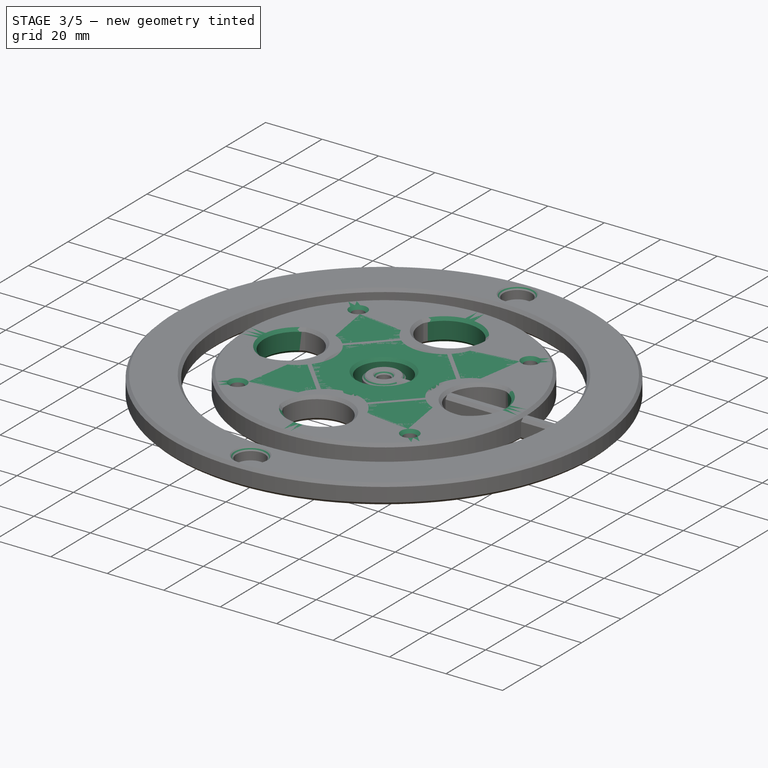
[diagram: stage 3 of 5 — iso view after this stage's code; geometry added in this stage tinted green]
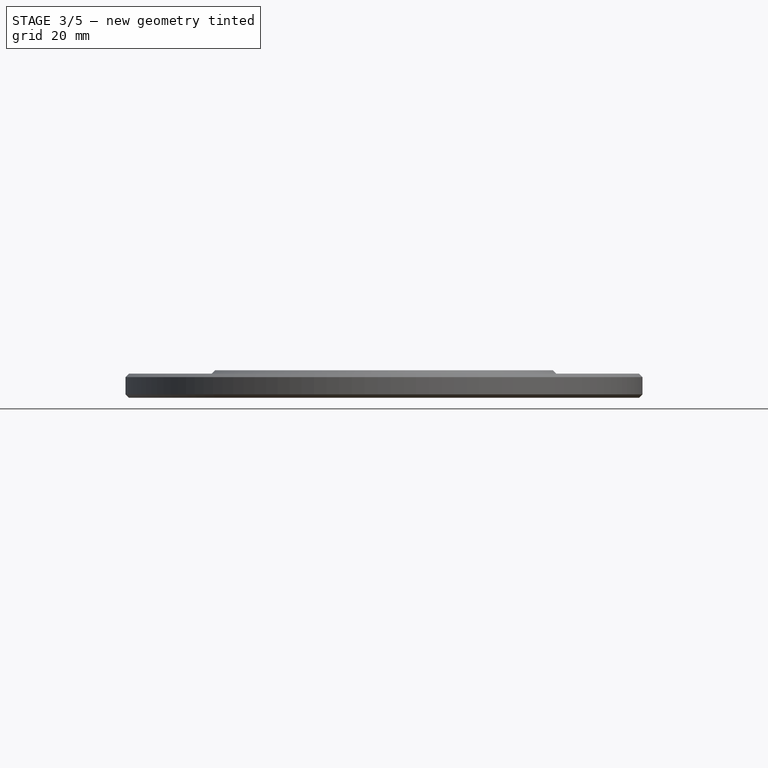
[diagram: stage 3 of 5 — front view after this stage's code; geometry added in this stage tinted green]
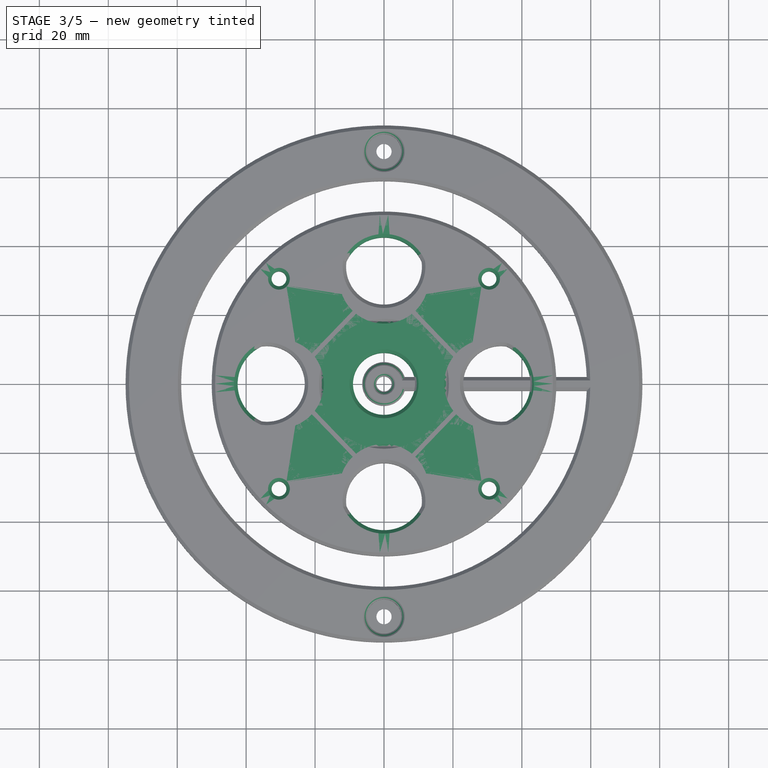
[diagram: stage 3 of 5 — top view after this stage's code; geometry added in this stage tinted green]
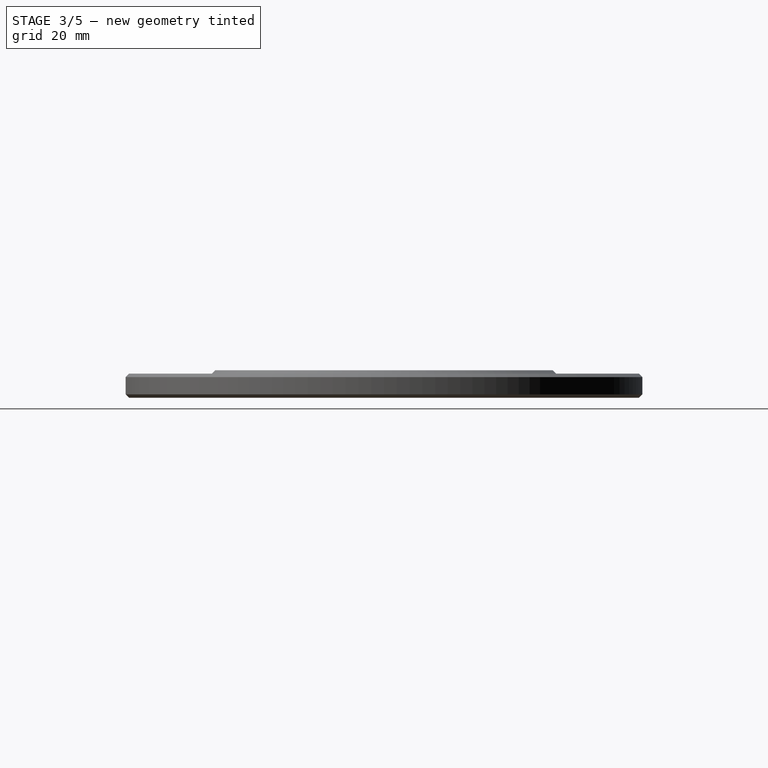
[diagram: stage 3 of 5 — right view after this stage's code; geometry added in this stage tinted green]
FEATURE [PartDesign::Body] Body  label="drilling template"
  Group = -> [Sketch001,Pad,Sketch,Pocket,Fillet,Chamfer]
  Origin = -> Origin
  Tip = -> Chamfer
FEATURE [Sketcher::SketchObject] Sketch002
  FullyConstrained = true
  MapMode = 5
  Support = -> [XY_Plane001]
  sketch-geometry (13):
    g0: Circle CenterX=-30.4798 CenterY=30.4798 CenterZ=0 NormalX=0 NormalY=0 NormalZ=1 AngleXU=0 Radius=2.15
    g1: Circle CenterX=30.4798 CenterY=30.4798 CenterZ=0 NormalX=0 NormalY=0 NormalZ=1 AngleXU=0 Radius=2.15
    g2: Circle CenterX=30.4798 CenterY=-30.4798 CenterZ=0 NormalX=0 NormalY=0 NormalZ=1 AngleXU=0 Radius=2.15
    g3: Circle CenterX=-30.4798 CenterY=-30.4798 CenterZ=0 NormalX=0 NormalY=0 NormalZ=1 AngleXU=0 Radius=2.15
    g4: LineSegment StartX=-30.4798 StartY=30.4798 StartZ=0 EndX=-30.4798 EndY=-30.4798 EndZ=0
    g5: LineSegment StartX=-30.4798 StartY=30.4798 StartZ=0 EndX=30.4798 EndY=30.4798 EndZ=0
    g6: GeomPoint X=0 Y=0 Z=0
    g7: Circle CenterX=0 CenterY=0 CenterZ=0 NormalX=0 NormalY=0 NormalZ=1 AngleXU=0 Radius=9
    g8: Circle CenterX=0 CenterY=0 CenterZ=0 NormalX=0 NormalY=0 NormalZ=1 AngleXU=0 Radius=50
    g9: Circle CenterX=-30.4798 CenterY=0 CenterZ=0 NormalX=0 NormalY=0 NormalZ=1 AngleXU=0 Radius=12
    g10: Circle CenterX=30.4798 CenterY=0 CenterZ=0 NormalX=0 NormalY=0 NormalZ=1 AngleXU=0 Radius=12
    g11: Circle CenterX=0 CenterY=-30.4798 CenterZ=0 NormalX=0 NormalY=0 NormalZ=1 AngleXU=0 Radius=12
    g12: Circle CenterX=0 CenterY=30.4798 CenterZ=0 NormalX=0 NormalY=0 NormalZ=1 AngleXU=0 Radius=12
  constraints (28):
    c: Symmetric(g3,g1,g-1)
    c: Symmetric(g0,g1,g-2)
    c: Symmetric(g1,g2,g-1)
    c: Distance(g1,g3) = 86.21
    c: Coincident(g4,g0)
    c: Coincident(g4,g3)
    c: Coincident(g5,g0)
    c: Coincident(g5,g1)
    c: Equal(g5,g4)
    c: Equal(g0,g1)
    c: Equal(g0,g2)
    c: Equal(g0,g3)
    c: Diameter(g0) = 4.3
    c: Coincident(g7,g6)
    c: Diameter(g7) = 18
    c: Coincident(g7,g-1)
    c: Coincident(g8,g7)
    c: Diameter(g8) = 100
    c: PointOnObject(g9,g-1)
    c: PointOnObject(g11,g-2)
    c: Symmetric(g12,g11,g-1)
    c: Symmetric(g10,g9,g-2)
    c: PointOnObject(g9,g4)
    c: PointOnObject(g12,g5)
    c: Equal(g12,g9)
    c: Equal(g12,g11)
    c: Equal(g12,g10)
    c: Diameter(g12) = 24
FEATURE [PartDesign::Pad] Pad001
  Direction = (0,0,1)
  Length = 8
  Length2 = 10
  Profile = -> Sketch002
  ReferenceAxis = -> Sketch002 [N_Axis]
  Type = 0
FEATURE [Sketcher::SketchObject] Sketch003
  AttachmentOffset = pos=(0,0,-2) rot=(0,0,1;0rad)
  ExternalGeometry = -> [Pad001]
  FullyConstrained = true
  MapMode = 5
  Placement = pos=(0,0,6) rot=(0,0,1;0rad)
  Support = -> [Pad001]
  sketch-geometry (2):
    g0: Circle CenterX=0 CenterY=0 CenterZ=0 NormalX=0 NormalY=0 NormalZ=1 AngleXU=0 Radius=9
    g1: Circle CenterX=0 CenterY=0 CenterZ=0 NormalX=0 NormalY=0 NormalZ=1 AngleXU=0 Radius=12.7
  constraints (4):
    c: Coincident(g0,g-3)
    c: Coincident(g1,g0)
    c: Equal(g-3,g0)
    c: Diameter(g1) = 25.4
FEATURE [PartDesign::Chamfer] Chamfer001
  Angle = 45
  Base = -> Pad001 [Face12,Face11]
  BaseFeature = -> Pad001
  ChamferType = 0
  FlipDirection = false
  Size = 1
  Size2 = 1
  SupportTransform = false
  UseAllEdges = false
FEATURE [PartDesign::Chamfer] Chamfer003
  Angle = 45
  Base = -> Pocket001 [Face3,Face2]
  BaseFeature = -> Pocket001
  ChamferType = 0
  FlipDirection = false
  Size = 1
  Size2 = 1
  SupportTransform = false
  UseAllEdges = false
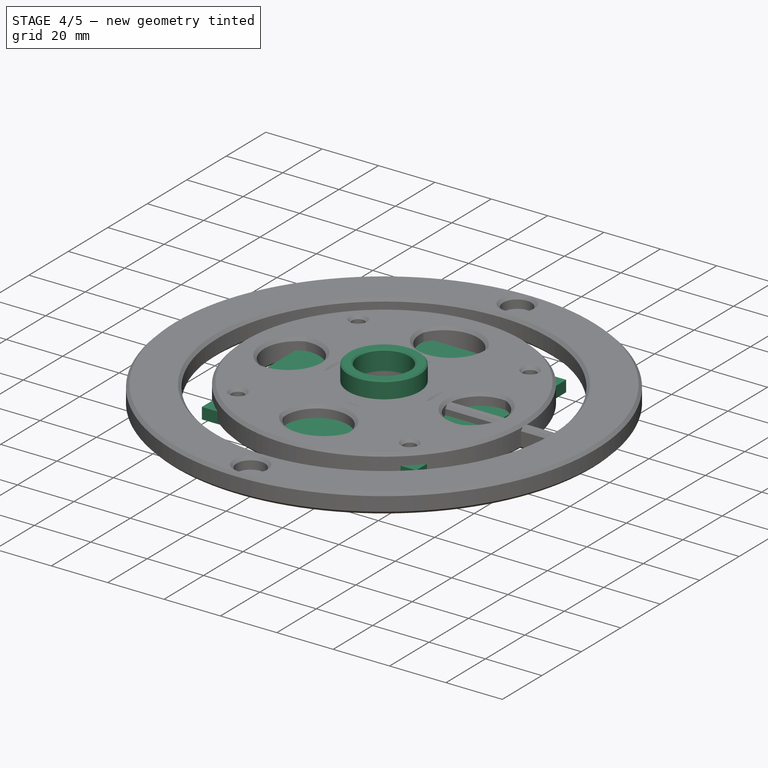
[diagram: stage 4 of 5 — iso view after this stage's code; geometry added in this stage tinted green]
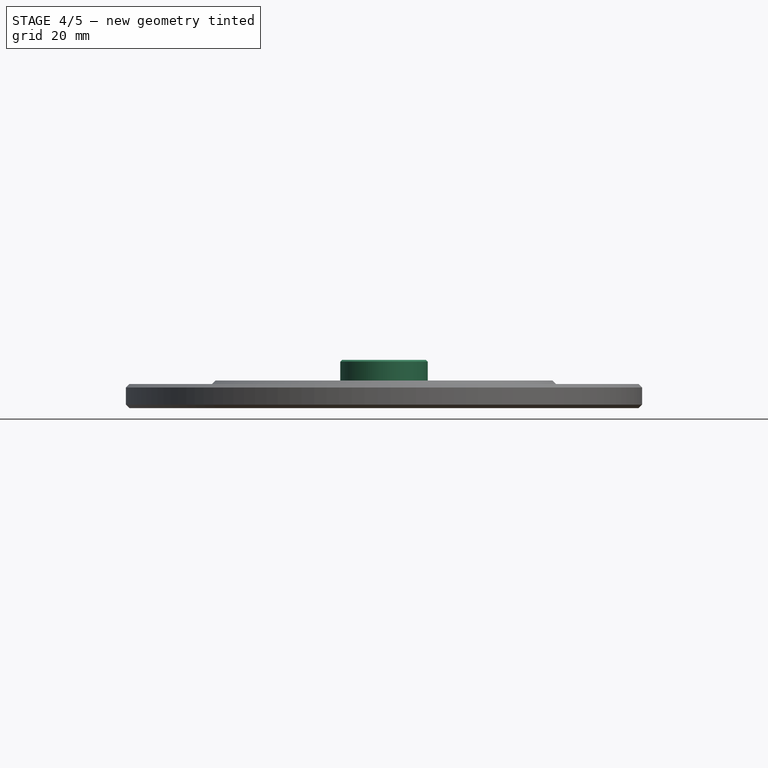
[diagram: stage 4 of 5 — front view after this stage's code; geometry added in this stage tinted green]
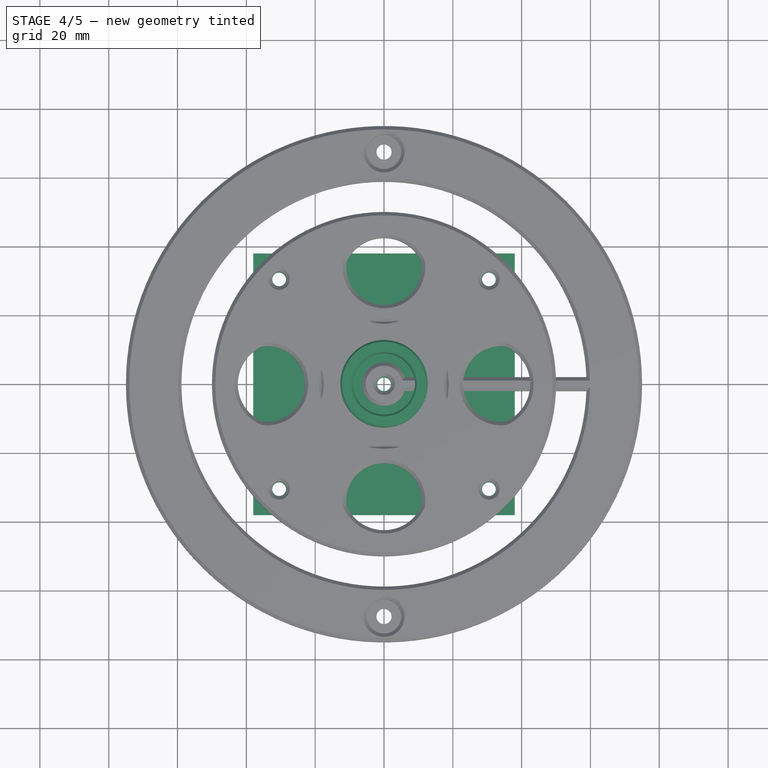
[diagram: stage 4 of 5 — top view after this stage's code; geometry added in this stage tinted green]
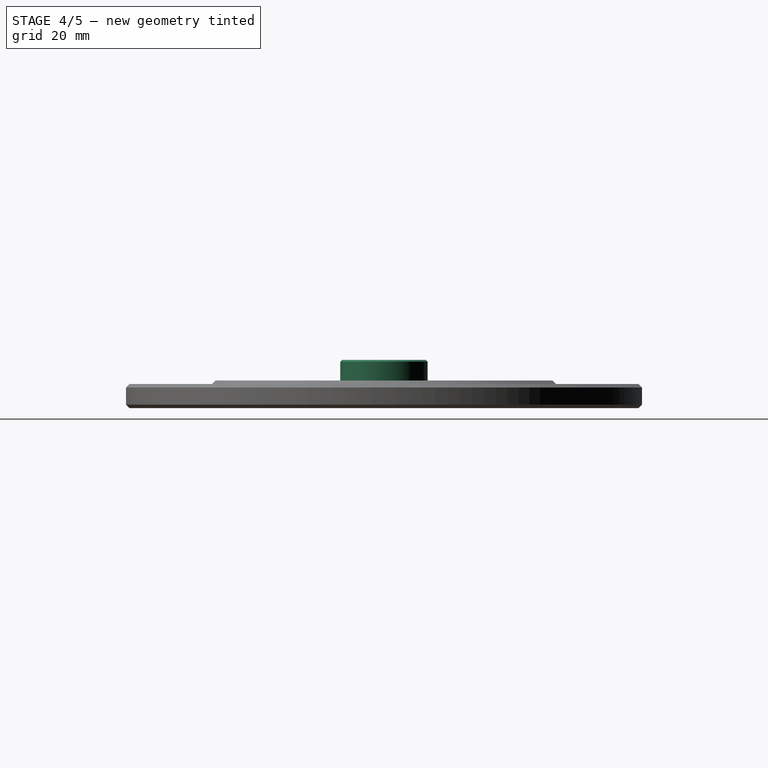
[diagram: stage 4 of 5 — right view after this stage's code; geometry added in this stage tinted green]
FEATURE [Part::Feature] Part__Feature  label="original"
  shape: bbox 111.7 x 128.2 x 6.35 mm, 90 faces (baked)
FEATURE [Sketcher::SketchObject] Sketch001
  FullyConstrained = true
  MapMode = 5
  Support = -> [XY_Plane]
  sketch-geometry (12):
    g0: Circle CenterX=-30.4798 CenterY=30.4798 CenterZ=0 NormalX=0 NormalY=0 NormalZ=1 AngleXU=0 Radius=2
    g1: Circle CenterX=30.4798 CenterY=30.4798 CenterZ=0 NormalX=0 NormalY=0 NormalZ=1 AngleXU=0 Radius=2
    g2: Circle CenterX=30.4798 CenterY=-30.4798 CenterZ=0 NormalX=0 NormalY=0 NormalZ=1 AngleXU=0 Radius=2
    g3: Circle CenterX=-30.4798 CenterY=-30.4798 CenterZ=0 NormalX=0 NormalY=0 NormalZ=1 AngleXU=0 Radius=2
    g4: LineSegment StartX=-30.4798 StartY=30.4798 StartZ=0 EndX=-30.4798 EndY=-30.4798 EndZ=0
    g5: LineSegment StartX=-30.4798 StartY=30.4798 StartZ=0 EndX=30.4798 EndY=30.4798 EndZ=0
    g6: Circle CenterX=0 CenterY=0 CenterZ=0 NormalX=0 NormalY=0 NormalZ=1 AngleXU=0 Radius=2
    g7: LineSegment StartX=38 StartY=-38 StartZ=0 EndX=38 EndY=38 EndZ=0
    g8: LineSegment StartX=38 StartY=38 StartZ=0 EndX=-38 EndY=38 EndZ=0
    g9: LineSegment StartX=-38 StartY=38 StartZ=0 EndX=-38 EndY=-38 EndZ=0
    g10: LineSegment StartX=-38 StartY=-38 StartZ=0 EndX=38 EndY=-38 EndZ=0
    g11: GeomPoint X=0 Y=0 Z=0
  constraints (27):
    c: Symmetric(g3,g1,g-1)
    c: Symmetric(g0,g1,g-2)
    c: Symmetric(g1,g2,g-1)
    c: Distance(g1,g3) = 86.21
    c: Coincident(g4,g0)
    c: Coincident(g4,g3)
    c: Coincident(g5,g0)
    c: Coincident(g5,g1)
    c: Equal(g5,g4)
    c: Equal(g0,g1)
    c: Equal(g0,g2)
    c: Equal(g0,g3)
    c: Diameter(g0) = 4
    c: Coincident(g6,g-1)
    c: Equal(g6,g2)
    c: Coincident(g7,g8)
    c: Coincident(g8,g9)
    c: Coincident(g9,g10)
    c: Coincident(g10,g7)
    c: Horizontal(g8)
    c: Horizontal(g10)
    c: Vertical(g7)
    c: Vertical(g9)
    c: Symmetric(g8,g7,g11)
    c: Coincident(g11,g6)
    c: Equal(g8,g9)
    c: DistanceX(g8,g8) = 76
FEATURE [PartDesign::Pad] Pad
  Direction = (0,0,1)
  Length = 4
  Length2 = 10
  Profile = -> Sketch001
  ReferenceAxis = -> Sketch001 [N_Axis]
  Type = 0
FEATURE [PartDesign::Pad] Pad002
  BaseFeature = -> Chamfer001
  Direction = (0,0,1)
  Length = 8
  Length2 = 10
  Profile = -> Sketch003
  ReferenceAxis = -> Sketch003 [N_Axis]
  Type = 0
FEATURE [PartDesign::Chamfer] Chamfer002
  Angle = 45
  Base = -> Pad002 [Face33]
  BaseFeature = -> Pad002
  ChamferType = 0
  FlipDirection = false
  Size = 0.5
  Size2 = 1
  SupportTransform = false
  UseAllEdges = false
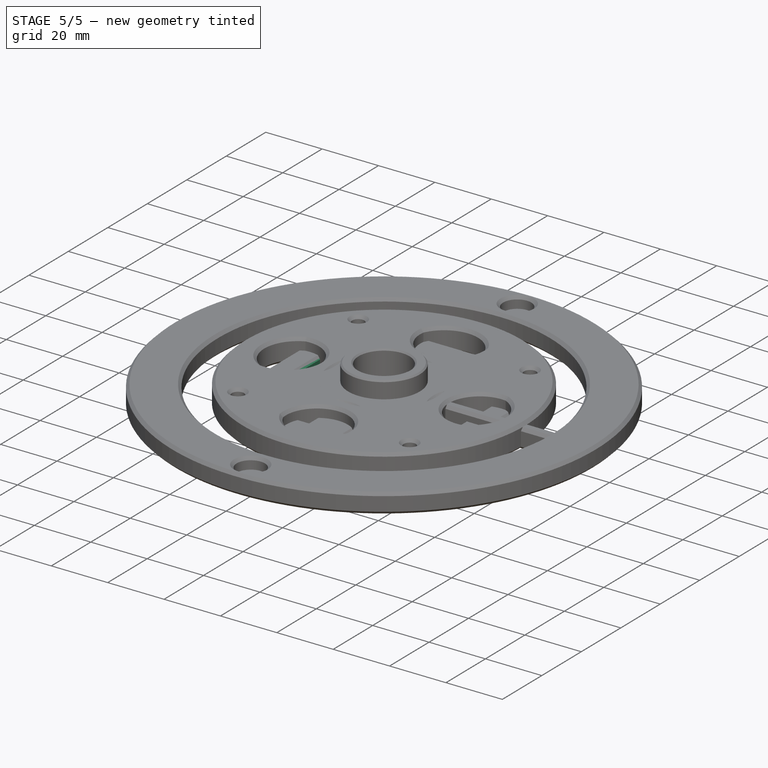
[diagram: stage 5 of 5 — iso view after this stage's code; geometry added in this stage tinted green]
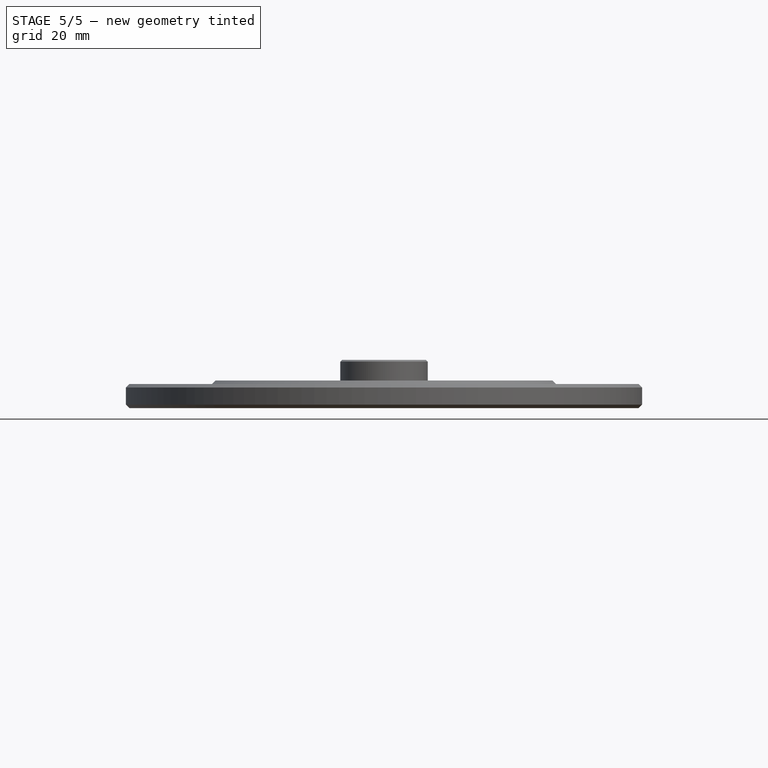
[diagram: stage 5 of 5 — front view after this stage's code; geometry added in this stage tinted green]
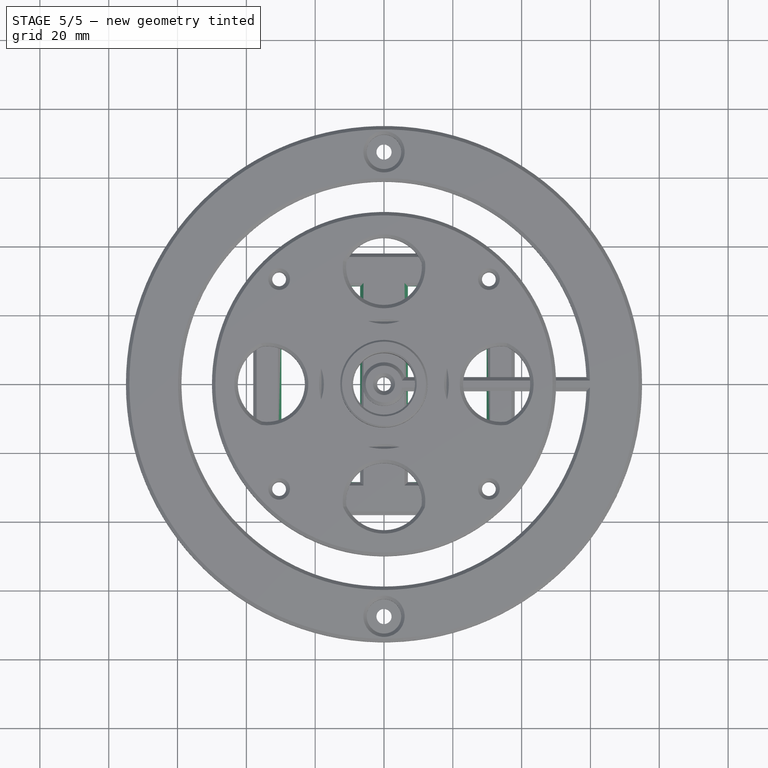
[diagram: stage 5 of 5 — top view after this stage's code; geometry added in this stage tinted green]
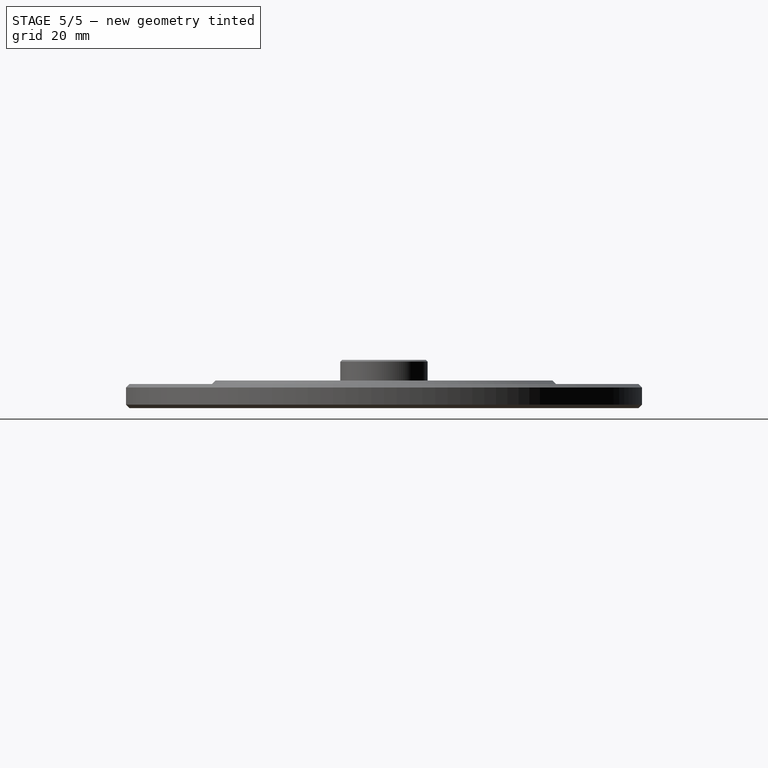
[diagram: stage 5 of 5 — right view after this stage's code; geometry added in this stage tinted green]
FEATURE [Sketcher::SketchObject] Sketch
  FullyConstrained = false
  MapMode = 5
  Placement = pos=(0,0,4) rot=(0,0,1;0rad)
  Support = -> [Pad]
  sketch-geometry (12):
    g0: LineSegment StartX=-29.8268 StartY=20.6272 StartZ=0 EndX=-29.8268 EndY=-20.6272 EndZ=0
    g1: LineSegment StartX=-29.8268 StartY=-20.6272 StartZ=0 EndX=-22.3637 EndY=-28.4412 EndZ=0
    g2: LineSegment StartX=-22.3637 StartY=-28.4412 StartZ=0 EndX=-6.95297 EndY=-28.4412 EndZ=0
    g3: LineSegment StartX=-6.95297 StartY=-28.4412 StartZ=0 EndX=-6.95297 EndY=28.4412 EndZ=0
    g4: LineSegment StartX=-6.95297 StartY=28.4412 StartZ=0 EndX=-22.3637 EndY=28.4412 EndZ=0
    g5: LineSegment StartX=-22.3637 StartY=28.4412 StartZ=0 EndX=-29.8268 EndY=20.6272 EndZ=0
    g6: LineSegment StartX=29.8268 StartY=20.6272 StartZ=0 EndX=29.8268 EndY=-20.6272 EndZ=0
    g7: LineSegment StartX=29.8268 StartY=-20.6272 StartZ=0 EndX=22.3637 EndY=-28.4412 EndZ=0
    g8: LineSegment StartX=22.3637 StartY=-28.4412 StartZ=0 EndX=6.95297 EndY=-28.4412 EndZ=0
    g9: LineSegment StartX=6.95297 StartY=-28.4412 StartZ=0 EndX=6.95297 EndY=28.4412 EndZ=0
    g10: LineSegment StartX=6.95297 StartY=28.4412 StartZ=0 EndX=22.3637 EndY=28.4412 EndZ=0
    g11: LineSegment StartX=22.3637 StartY=28.4412 StartZ=0 EndX=29.8268 EndY=20.6272 EndZ=0
  constraints (17):
    c: Coincident(g0,g1)
    c: Coincident(g1,g2)
    c: Horizontal(g2)
    c: Coincident(g2,g3)
    c: Coincident(g3,g4)
    c: Coincident(g4,g5)
    c: Coincident(g5,g0)
    c: Symmetric(g3,g2,g-1)
    c: Symmetric(g0,g0,g-1)
    c: Symmetric(g4,g1,g-1)
    c: Coincident(g6,g7)
    c: Coincident(g7,g8)
    c: Horizontal(g8)
    c: Coincident(g8,g9)
    c: Coincident(g9,g10)
    c: Coincident(g10,g11)
    c: Coincident(g11,g6)
FEATURE [PartDesign::Pocket] Pocket
  BaseFeature = -> Pad
  Direction = (0,0,-1)
  Length = 5
  Length2 = 5
  Profile = -> Sketch
  ReferenceAxis = -> Sketch [N_Axis]
  Type = 0
FEATURE [PartDesign::Fillet] Fillet
  Base = -> Pocket [Edge1,Edge5,Edge8,Edge2]
  BaseFeature = -> Pocket
  Radius = 10
  SupportTransform = false
  UseAllEdges = false
FEATURE [PartDesign::Chamfer] Chamfer
  Angle = 45
  Base = -> Fillet [Face5,Face2]
  BaseFeature = -> Fillet
  ChamferType = 0
  FlipDirection = false
  Size = 1
  Size2 = 1
  SupportTransform = false
  UseAllEdges = false
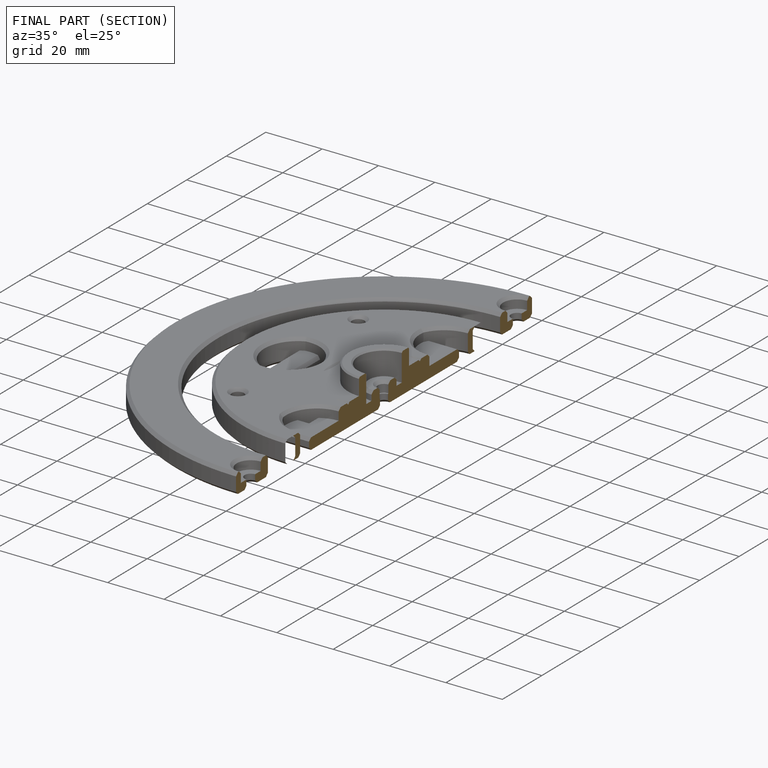
[diagram: finished part — half-section view (interior)]
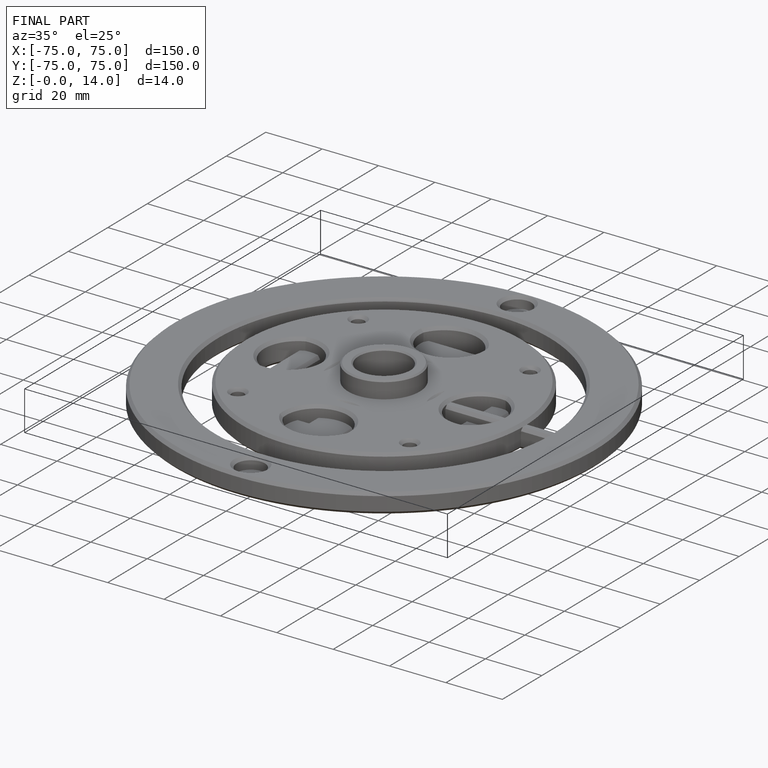
[diagram: finished part — iso view with bounding-box wireframe]
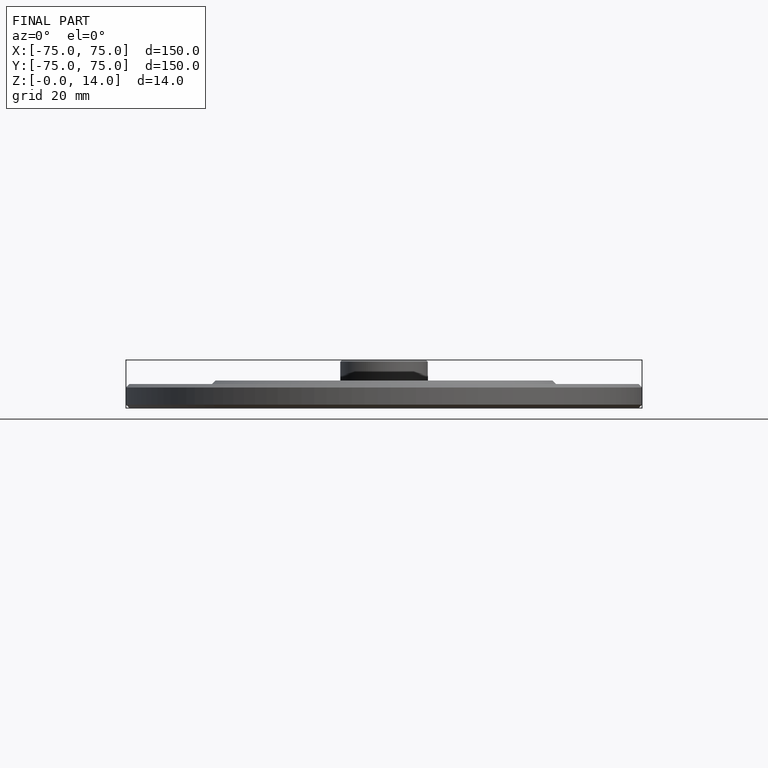
[diagram: finished part — front view with bounding-box wireframe]
